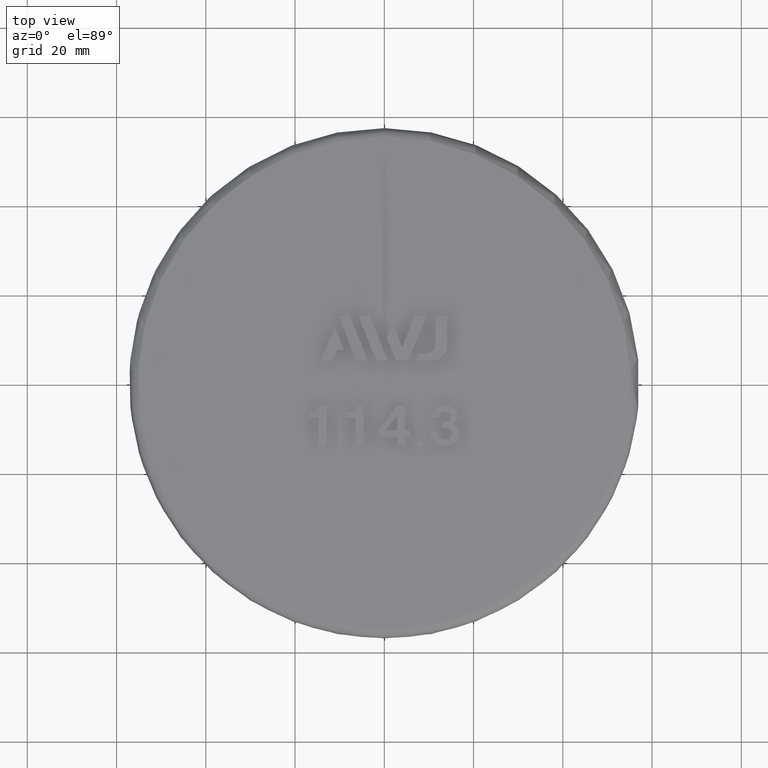
[diagram: clean part render]
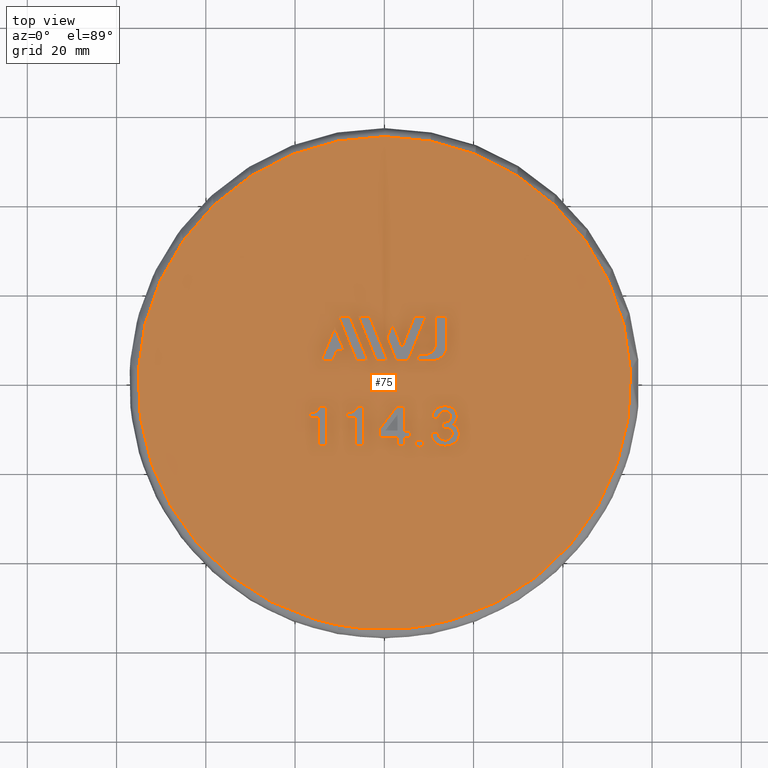
[diagram: same view with one face highlighted and labeled with its STEP entity id]
A machine part, top view. The second image highlights one B-rep face of the part: STEP entity #75.
In plain terms, the highlighted face is a freeform B-spline surface patch.
Its self-contained STEP definition (entity closure, byte-faithful):
#75 = ADVANCED_FACE( '', ( #177, #178, #179, #180, #181, #182, #183, #184, #185, #186, #187, #188 ), #189, .T. );
#177 = FACE_BOUND( '', #415, .T. );
#178 = FACE_BOUND( '', #416, .T. );
#179 = FACE_BOUND( '', #417, .T. );
#180 = FACE_BOUND( '', #418, .T. );
#181 = FACE_BOUND( '', #419, .T. );
#182 = FACE_BOUND( '', #420, .T. );
#183 = FACE_BOUND( '', #421, .T. );
#184 = FACE_BOUND( '', #422, .T. );
#185 = FACE_OUTER_BOUND( '', #423, .T. );
#186 = FACE_BOUND( '', #424, .T. );
#187 = FACE_BOUND( '', #425, .T. );
#188 = FACE_BOUND( '', #426, .T. );
#189 = ( B_SPLINE_SURFACE( 3, 3, ( ( #428, #429, #430, #431, #432, #433, #434 ), ( #435, #436, #437, #438, #439, #440, #441 ), ( #442, #443, #444, #445, #446, #447, #448 ), ( #449, #450, #451, #452, #453, #454, #455 ) ), .UNSPECIFIED., .F., .T., .F. )B_SPLINE_SURFACE_WITH_KNOTS( ( 4, 4 ), ( 4, 3, 4 ), ( 0.000000000000000, 6.28318530717959 ), ( -1.57235436849402, -1.55394387726854, -1.53553338604306 ), .UNSPECIFIED. )RATIONAL_B_SPLINE_SURFACE( ( ( 1.00000000000000, 0.333333333333333, 0.333333333333333, 1.00000000000000, 0.333333333333333, 0.333333333333333, 1.00000000000000 ), ( 0.999887021128813, 0.333295673709604, 0.333295673709604, 0.999887021128813, 0.333295673709604, 0.333295673709604, 0.999887021128813 ), ( 0.999887021128813, 0.333295673709604, 0.333295673709604, 0.999887021128813, 0.333295673709604, 0.333295673709604, 0.999887021128813 ), ( 1.00000000000000, 0.333333333333333, 0.333333333333333, 1.00000000000000, 0.333333333333333, 0.333333333333333, 1.00000000000000 ) ) )BOUNDED_SURFACE(  )REPRESENTATION_ITEM( '' )GEOMETRIC_REPRESENTATION_ITEM(  )SURFACE(  ) );
#415 = EDGE_LOOP( '', ( #937, #938, #939, #940, #941, #942, #943, #944 ) );
#416 = EDGE_LOOP( '', ( #945 ) );
#417 = EDGE_LOOP( '', ( #946, #947, #948, #949, #950, #951, #952, #953, #954, #955, #956 ) );
#418 = EDGE_LOOP( '', ( #957, #958, #959, #960, #961, #962, #963 ) );
#419 = EDGE_LOOP( '', ( #964, #965, #966, #967, #968, #969, #970 ) );
#420 = EDGE_LOOP( '', ( #971, #972, #973, #974 ) );
#421 = EDGE_LOOP( '', ( #975, #976, #977, #978, #979, #980, #981 ) );
#422 = VERTEX_LOOP( '', #982 );
#423 = EDGE_LOOP( '', ( #983 ) );
#424 = EDGE_LOOP( '', ( #984, #985, #986, #987, #988, #989, #990, #991 ) );
#425 = EDGE_LOOP( '', ( #992, #993, #994, #995 ) );
#426 = EDGE_LOOP( '', ( #996, #997, #998, #999, #1000 ) );
#428 = CARTESIAN_POINT( '', ( 0.000000000000000, 55.2205112662175, 27.0693110126059 ) );
#429 = CARTESIAN_POINT( '', ( 110.441022532435, 55.2205112662175, 27.0693110126059 ) );
#430 = CARTESIAN_POINT( '', ( 110.441022532435, -55.2205112662175, 27.0693110126059 ) );
#431 = CARTESIAN_POINT( '', ( 0.000000000000000, -55.2205112662175, 27.0693110126059 ) );
#432 = CARTESIAN_POINT( '', ( -110.441022532435, -55.2205112662175, 27.0693110126059 ) );
#433 = CARTESIAN_POINT( '', ( -110.441022532435, 55.2205112662175, 27.0693110126059 ) );
#434 = CARTESIAN_POINT( '', ( 0.000000000000000, 55.2205112662175, 27.0693110126059 ) );
#435 = CARTESIAN_POINT( '', ( 0.000000000000000, 36.8204258899541, 27.7184212061282 ) );
#436 = CARTESIAN_POINT( '', ( 73.6408517799082, 36.8204258899541, 27.7184212061282 ) );
#437 = CARTESIAN_POINT( '', ( 73.6408517799082, -36.8204258899541, 27.7184212061283 ) );
#438 = CARTESIAN_POINT( '', ( 0.000000000000000, -36.8204258899541, 27.7184212061283 ) );
#439 = CARTESIAN_POINT( '', ( -73.6408517799082, -36.8204258899541, 27.7184212061283 ) );
#440 = CARTESIAN_POINT( '', ( -73.6408517799082, 36.8204258899541, 27.7184212061282 ) );
#441 = CARTESIAN_POINT( '', ( 0.000000000000000, 36.8204258899541, 27.7184212061282 ) );
#442 = CARTESIAN_POINT( '', ( 0.000000000000000, 18.4115089825626, 28.0286859219505 ) );
#443 = CARTESIAN_POINT( '', ( 36.8230179651251, 18.4115089825626, 28.0286859219505 ) );
#444 = CARTESIAN_POINT( '', ( 36.8230179651251, -18.4115089825626, 28.0286859219505 ) );
#445 = CARTESIAN_POINT( '', ( 0.000000000000000, -18.4115089825626, 28.0286859219505 ) );
#446 = CARTESIAN_POINT( '', ( -36.8230179651251, -18.4115089825626, 28.0286859219505 ) );
#447 = CARTESIAN_POINT( '', ( -36.8230179651251, 18.4115089825626, 28.0286859219505 ) );
#448 = CARTESIAN_POINT( '', ( 0.000000000000000, 18.4115089825626, 28.0286859219505 ) );
#449 = CARTESIAN_POINT( '', ( 0.000000000000000, -4.85288892404512E-013, 28.0000000000002 ) );
#450 = CARTESIAN_POINT( '', ( -9.71312548621317E-013, -4.85288892404512E-013, 28.0000000000002 ) );
#451 = CARTESIAN_POINT( '', ( -9.71312548621317E-013, 4.86023656216805E-013, 28.0000000000002 ) );
#452 = CARTESIAN_POINT( '', ( 0.000000000000000, 4.86023656216805E-013, 28.0000000000002 ) );
#453 = CARTESIAN_POINT( '', ( 9.71312548621317E-013, 4.86023656216805E-013, 28.0000000000002 ) );
#454 = CARTESIAN_POINT( '', ( 9.71312548621317E-013, -4.85288892404512E-013, 28.0000000000002 ) );
#455 = CARTESIAN_POINT( '', ( 0.000000000000000, -4.85288892404512E-013, 28.0000000000002 ) );
#937 = ORIENTED_EDGE( '', *, *, #1697, .T. );
#938 = ORIENTED_EDGE( '', *, *, #1698, .T. );
#939 = ORIENTED_EDGE( '', *, *, #1699, .T. );
#940 = ORIENTED_EDGE( '', *, *, #1700, .T. );
#941 = ORIENTED_EDGE( '', *, *, #1701, .T. );
#942 = ORIENTED_EDGE( '', *, *, #1702, .T. );
#943 = ORIENTED_EDGE( '', *, *, #1703, .T. );
#944 = ORIENTED_EDGE( '', *, *, #1704, .T. );
#945 = ORIENTED_EDGE( '', *, *, #1705, .T. );
#946 = ORIENTED_EDGE( '', *, *, #1706, .T. );
#947 = ORIENTED_EDGE( '', *, *, #1707, .T. );
#948 = ORIENTED_EDGE( '', *, *, #1708, .T. );
#949 = ORIENTED_EDGE( '', *, *, #1709, .T. );
#950 = ORIENTED_EDGE( '', *, *, #1710, .T. );
#951 = ORIENTED_EDGE( '', *, *, #1711, .T. );
#952 = ORIENTED_EDGE( '', *, *, #1712, .T. );
#953 = ORIENTED_EDGE( '', *, *, #1713, .T. );
#954 = ORIENTED_EDGE( '', *, *, #1714, .T. );
#955 = ORIENTED_EDGE( '', *, *, #1715, .T. );
#956 = ORIENTED_EDGE( '', *, *, #1716, .T. );
#957 = ORIENTED_EDGE( '', *, *, #1717, .T. );
#958 = ORIENTED_EDGE( '', *, *, #1718, .T. );
#959 = ORIENTED_EDGE( '', *, *, #1719, .T. );
#960 = ORIENTED_EDGE( '', *, *, #1720, .T. );
#961 = ORIENTED_EDGE( '', *, *, #1721, .T. );
#962 = ORIENTED_EDGE( '', *, *, #1722, .T. );
#963 = ORIENTED_EDGE( '', *, *, #1723, .T. );
#964 = ORIENTED_EDGE( '', *, *, #1724, .T. );
#965 = ORIENTED_EDGE( '', *, *, #1725, .T. );
#966 = ORIENTED_EDGE( '', *, *, #1726, .T. );
#967 = ORIENTED_EDGE( '', *, *, #1727, .T. );
#968 = ORIENTED_EDGE( '', *, *, #1728, .T. );
#969 = ORIENTED_EDGE( '', *, *, #1729, .T. );
#970 = ORIENTED_EDGE( '', *, *, #1730, .T. );
#971 = ORIENTED_EDGE( '', *, *, #1731, .F. );
#972 = ORIENTED_EDGE( '', *, *, #1732, .F. );
#973 = ORIENTED_EDGE( '', *, *, #1733, .F. );
#974 = ORIENTED_EDGE( '', *, *, #1734, .F. );
#975 = ORIENTED_EDGE( '', *, *, #1735, .F. );
#976 = ORIENTED_EDGE( '', *, *, #1736, .F. );
#977 = ORIENTED_EDGE( '', *, *, #1737, .F. );
#978 = ORIENTED_EDGE( '', *, *, #1738, .F. );
#979 = ORIENTED_EDGE( '', *, *, #1739, .F. );
#980 = ORIENTED_EDGE( '', *, *, #1740, .F. );
#981 = ORIENTED_EDGE( '', *, *, #1741, .F. );
#982 = VERTEX_POINT( '', #1742 );
#983 = ORIENTED_EDGE( '', *, *, #1743, .F. );
#984 = ORIENTED_EDGE( '', *, *, #1744, .F. );
#985 = ORIENTED_EDGE( '', *, *, #1745, .F. );
#986 = ORIENTED_EDGE( '', *, *, #1746, .F. );
#987 = ORIENTED_EDGE( '', *, *, #1747, .F. );
#988 = ORIENTED_EDGE( '', *, *, #1748, .F. );
#989 = ORIENTED_EDGE( '', *, *, #1749, .F. );
#990 = ORIENTED_EDGE( '', *, *, #1750, .F. );
#991 = ORIENTED_EDGE( '', *, *, #1751, .F. );
#992 = ORIENTED_EDGE( '', *, *, #1752, .F. );
#993 = ORIENTED_EDGE( '', *, *, #1753, .F. );
#994 = ORIENTED_EDGE( '', *, *, #1754, .F. );
#995 = ORIENTED_EDGE( '', *, *, #1755, .F. );
#996 = ORIENTED_EDGE( '', *, *, #1756, .F. );
#997 = ORIENTED_EDGE( '', *, *, #1757, .F. );
#998 = ORIENTED_EDGE( '', *, *, #1758, .F. );
#999 = ORIENTED_EDGE( '', *, *, #1759, .F. );
#1000 = ORIENTED_EDGE( '', *, *, #1760, .F. );
#1697 = EDGE_CURVE( '', #1916, #1917, #1918, .T. );
#1698 = EDGE_CURVE( '', #1917, #1919, #1920, .T. );
#1699 = EDGE_CURVE( '', #1919, #1921, #1922, .T. );
#1700 = EDGE_CURVE( '', #1921, #1923, #1924, .T. );
#1701 = EDGE_CURVE( '', #1923, #1925, #1926, .T. );
#1702 = EDGE_CURVE( '', #1925, #1927, #1928, .T. );
#1703 = EDGE_CURVE( '', #1927, #1929, #1930, .T. );
#1704 = EDGE_CURVE( '', #1929, #1916, #1931, .T. );
#1705 = EDGE_CURVE( '', #1932, #1932, #1933, .T. );
#1706 = EDGE_CURVE( '', #1934, #1935, #1936, .T. );
#1707 = EDGE_CURVE( '', #1935, #1937, #1938, .T. );
#1708 = EDGE_CURVE( '', #1937, #1939, #1940, .T. );
#1709 = EDGE_CURVE( '', #1939, #1941, #1942, .T. );
#1710 = EDGE_CURVE( '', #1941, #1943, #1944, .T. );
#1711 = EDGE_CURVE( '', #1943, #1945, #1946, .T. );
#1712 = EDGE_CURVE( '', #1945, #1947, #1948, .T. );
#1713 = EDGE_CURVE( '', #1947, #1949, #1950, .T. );
#1714 = EDGE_CURVE( '', #1949, #1951, #1952, .T. );
#1715 = EDGE_CURVE( '', #1951, #1953, #1954, .T. );
#1716 = EDGE_CURVE( '', #1953, #1934, #1955, .T. );
#1717 = EDGE_CURVE( '', #1956, #1957, #1958, .T. );
#1718 = EDGE_CURVE( '', #1957, #1959, #1960, .T. );
#1719 = EDGE_CURVE( '', #1959, #1961, #1962, .T. );
#1720 = EDGE_CURVE( '', #1961, #1963, #1964, .T. );
#1721 = EDGE_CURVE( '', #1963, #1965, #1966, .T. );
#1722 = EDGE_CURVE( '', #1965, #1967, #1968, .T. );
#1723 = EDGE_CURVE( '', #1967, #1956, #1969, .T. );
#1724 = EDGE_CURVE( '', #1970, #1971, #1972, .T. );
#1725 = EDGE_CURVE( '', #1971, #1973, #1974, .T. );
#1726 = EDGE_CURVE( '', #1973, #1975, #1976, .T. );
#1727 = EDGE_CURVE( '', #1975, #1977, #1978, .T. );
#1728 = EDGE_CURVE( '', #1977, #1979, #1980, .T. );
#1729 = EDGE_CURVE( '', #1979, #1981, #1982, .T. );
#1730 = EDGE_CURVE( '', #1981, #1970, #1983, .T. );
#1731 = EDGE_CURVE( '', #1984, #1985, #1986, .T. );
#1732 = EDGE_CURVE( '', #1987, #1984, #1988, .T. );
#1733 = EDGE_CURVE( '', #1989, #1987, #1990, .T. );
#1734 = EDGE_CURVE( '', #1985, #1989, #1991, .T. );
#1735 = EDGE_CURVE( '', #1992, #1993, #1994, .T. );
#1736 = EDGE_CURVE( '', #1995, #1992, #1996, .T. );
#1737 = EDGE_CURVE( '', #1997, #1995, #1998, .T. );
#1738 = EDGE_CURVE( '', #1999, #1997, #2000, .T. );
#1739 = EDGE_CURVE( '', #2001, #1999, #2002, .T. );
#1740 = EDGE_CURVE( '', #2003, #2001, #2004, .T. );
#1741 = EDGE_CURVE( '', #1993, #2003, #2005, .T. );
#1742 = CARTESIAN_POINT( '', ( 4.33680868994202E-016, 3.67381906146753E-016, 28.0000000000002 ) );
#1743 = EDGE_CURVE( '', #2006, #2006, #2007, .T. );
#1744 = EDGE_CURVE( '', #2008, #2009, #2010, .T. );
#1745 = EDGE_CURVE( '', #2011, #2008, #2012, .T. );
#1746 = EDGE_CURVE( '', #2013, #2011, #2014, .T. );
#1747 = EDGE_CURVE( '', #2015, #2013, #2016, .T. );
#1748 = EDGE_CURVE( '', #2017, #2015, #2018, .T. );
#1749 = EDGE_CURVE( '', #2019, #2017, #2020, .T. );
#1750 = EDGE_CURVE( '', #2021, #2019, #2022, .T. );
#1751 = EDGE_CURVE( '', #2009, #2021, #2023, .T. );
#1752 = EDGE_CURVE( '', #2024, #2025, #2026, .T. );
#1753 = EDGE_CURVE( '', #2027, #2024, #2028, .T. );
#1754 = EDGE_CURVE( '', #2029, #2027, #2030, .T. );
#1755 = EDGE_CURVE( '', #2025, #2029, #2031, .T. );
#1756 = EDGE_CURVE( '', #2032, #2033, #2034, .T. );
#1757 = EDGE_CURVE( '', #2035, #2032, #2036, .T. );
#1758 = EDGE_CURVE( '', #2037, #2035, #2038, .T. );
#1759 = EDGE_CURVE( '', #2039, #2037, #2040, .T. );
#1760 = EDGE_CURVE( '', #2033, #2039, #2041, .T. );
#1916 = VERTEX_POINT( '', #2288 );
#1917 = VERTEX_POINT( '', #2289 );
#1918 = B_SPLINE_CURVE_WITH_KNOTS( '', 3, ( #2290, #2291, #2292, #2293, #2294, #2295 ), .UNSPECIFIED., .F., .F., ( 4, 2, 4 ), ( 9.51669816724376, 9.51739772819665, 9.51809728914955 ), .UNSPECIFIED. );
#1919 = VERTEX_POINT( '', #2296 );
#1920 = B_SPLINE_CURVE_WITH_KNOTS( '', 3, ( #2297, #2298, #2299, #2300, #2301, #2302, #2303, #2304, #2305, #2306, #2307, #2308, #2309, #2310, #2311, #2312, #2313, #2314, #2315, #2316, #2317, #2318, #2319, #2320, #2321, #2322, #2323, #2324, #2325, #2326, #2327, #2328, #2329, #2330, #2331, #2332 ), .UNSPECIFIED., .F., .F., ( 4, 2, 2, 2, 2, 2, 2, 2, 2, 2, 2, 2, 2, 2, 2, 2, 2, 4 ), ( 0.000000000000000, 0.000674821389498932, 0.00134964277899786, 0.00202446416849680, 0.00269928555799573, 0.00337410694749466, 0.00404892833699359, 0.00472374972649252, 0.00539857111599145, 0.00607339250549039, 0.00674821389498932, 0.00742303528448826, 0.00809785667398719, 0.00877267806348614, 0.00911008875823560, 0.00944749945298507, 0.0101223208424840, 0.0107971422319829 ), .UNSPECIFIED. );
#1921 = VERTEX_POINT( '', #2333 );
#1922 = B_SPLINE_CURVE_WITH_KNOTS( '', 3, ( #2334, #2335, #2336, #2337, #2338, #2339, #2340, #2341, #2342, #2343, #2344, #2345, #2346, #2347, #2348, #2349, #2350, #2351, #2352, #2353, #2354, #2355, #2356, #2357, #2358, #2359, #2360, #2361, #2362, #2363, #2364, #2365 ), .UNSPECIFIED., .F., .F., ( 4, 2, 2, 2, 2, 2, 2, 2, 2, 2, 2, 2, 2, 2, 2, 4 ), ( 0.000000000000000, 0.000613856985638581, 0.00122771397127716, 0.00153464246409645, 0.00184157095691575, 0.00245542794255434, 0.00306928492819292, 0.00368314191383151, 0.00491085588510869, 0.00552471287074727, 0.00613856985638586, 0.00675242684202444, 0.00736628382766303, 0.00859399779894020, 0.00920785478457878, 0.00982171177021737 ), .UNSPECIFIED. );
#1923 = VERTEX_POINT( '', #2366 );
#1924 = B_SPLINE_CURVE_WITH_KNOTS( '', 3, ( #2367, #2368, #2369, #2370, #2371, #2372, #2373, #2374, #2375, #2376 ), .UNSPECIFIED., .F., .F., ( 4, 2, 2, 2, 4 ), ( 0.000000000000000, 0.000688424287591762, 0.00137684857518352, 0.00206527286277529, 0.00275369715036705 ), .UNSPECIFIED. );
#1925 = VERTEX_POINT( '', #2377 );
#1926 = B_SPLINE_CURVE_WITH_KNOTS( '', 3, ( #2378, #2379, #2380, #2381, #2382, #2383 ), .UNSPECIFIED., .F., .F., ( 4, 2, 4 ), ( 9.51724989867410, 9.51802716645462, 9.51880443423515 ), .UNSPECIFIED. );
#1927 = VERTEX_POINT( '', #2384 );
#1928 = B_SPLINE_CURVE_WITH_KNOTS( '', 3, ( #2385, #2386, #2387, #2388, #2389, #2390, #2391, #2392, #2393, #2394, #2395, #2396, #2397, #2398, #2399, #2400, #2401, #2402, #2403, #2404, #2405, #2406, #2407, #2408, #2409, #2410, #2411, #2412, #2413, #2414, #2415, #2416, #2417, #2418, #2419, #2420, #2421, #2422, #2423, #2424 ), .UNSPECIFIED., .F., .F., ( 4, 2, 2, 2, 2, 2, 2, 2, 2, 2, 2, 2, 2, 2, 2, 2, 2, 2, 2, 4 ), ( 0.000000000000000, 0.000485256102238799, 0.000970512204477598, 0.00145576830671640, 0.00194102440895520, 0.00242628051119399, 0.00291153661343279, 0.00339679271567159, 0.00388204881791039, 0.00436730492014919, 0.00460993297126859, 0.00485256102238799, 0.00533781712462679, 0.00558044517574619, 0.00582307322686559, 0.00606570127798499, 0.00630832932910439, 0.00655095738022379, 0.00679358543134319, 0.00776409763582080 ), .UNSPECIFIED. );
#1929 = VERTEX_POINT( '', #2425 );
#1930 = B_SPLINE_CURVE_WITH_KNOTS( '', 3, ( #2426, #2427, #2428, #2429, #2430, #2431 ), .UNSPECIFIED., .F., .F., ( 4, 2, 4 ), ( 9.51737793668783, 9.51804723536890, 9.51871653404997 ), .UNSPECIFIED. );
#1931 = B_SPLINE_CURVE_WITH_KNOTS( '', 3, ( #2432, #2433, #2434, #2435, #2436, #2437, #2438, #2439, #2440, #2441, #2442, #2443, #2444, #2445, #2446, #2447, #2448, #2449, #2450, #2451, #2452, #2453, #2454, #2455, #2456, #2457, #2458, #2459, #2460, #2461, #2462, #2463, #2464, #2465, #2466, #2467 ), .UNSPECIFIED., .F., .F., ( 4, 2, 2, 2, 2, 2, 2, 2, 2, 2, 2, 2, 2, 2, 2, 2, 2, 4 ), ( 0.000000000000000, 0.000856470489520276, 0.00128470573428042, 0.00149882335666048, 0.00171294097904055, 0.00192705860142062, 0.00214117622380068, 0.00235529384618075, 0.00256941146856082, 0.00299764671332095, 0.00342588195808108, 0.00385411720284121, 0.00428235244760135, 0.00471058769236148, 0.00513882293712161, 0.00556705818188174, 0.00599529342664187, 0.00685176391616213 ), .UNSPECIFIED. );
#1932 = VERTEX_POINT( '', #2468 );
#1933 = B_SPLINE_CURVE_WITH_KNOTS( '', 3, ( #2469, #2470, #2471, #2472, #2473, #2474, #2475, #2476, #2477, #2478, #2479, #2480, #2481, #2482, #2483, #2484, #2485, #2486, #2487, #2488, #2489, #2490, #2491, #2492, #2493, #2494, #2495, #2496, #2497, #2498, #2499, #2500, #2501, #2502 ), .UNSPECIFIED., .T., .F., ( 2, 2, 2, 2, 2, 2, 2, 2, 2, 2, 2, 2, 2, 2, 2, 2, 2, 2, 2 ), ( -0.000332484029414087, 0.000000000000000, 0.000332484029414087, 0.000664968058828173, 0.000997452088242260, 0.00132993611765635, 0.00166242014707043, 0.00199490417648452, 0.00232738820589861, 0.00265987223531269, 0.00299235626472678, 0.00332484029414087, 0.00365732432355495, 0.00398980835296904, 0.00432229238238313, 0.00465477641179721, 0.00498726044121130, 0.00531974447062538, 0.00565222850003947 ), .UNSPECIFIED. );
#1934 = VERTEX_POINT( '', #2503 );
#1935 = VERTEX_POINT( '', #2504 );
#1936 = B_SPLINE_CURVE_WITH_KNOTS( '', 3, ( #2505, #2506, #2507, #2508, #2509, #2510 ), .UNSPECIFIED., .F., .F., ( 4, 2, 4 ), ( 9.51722120429755, 9.51805028741190, 9.51887937052626 ), .UNSPECIFIED. );
#1937 = VERTEX_POINT( '', #2511 );
#1938 = B_SPLINE_CURVE_WITH_KNOTS( '', 3, ( #2512, #2513, #2514, #2515, #2516, #2517 ), .UNSPECIFIED., .F., .F., ( 4, 2, 4 ), ( 9.51776508256005, 9.51873669119526, 9.51970829983048 ), .UNSPECIFIED. );
#1939 = VERTEX_POINT( '', #2518 );
#1940 = B_SPLINE_CURVE_WITH_KNOTS( '', 3, ( #2519, #2520, #2521, #2522, #2523, #2524 ), .UNSPECIFIED., .F., .F., ( 4, 2, 4 ), ( 9.51721485841612, 9.51920988327085, 9.52120490812558 ), .UNSPECIFIED. );
#1941 = VERTEX_POINT( '', #2525 );
#1942 = B_SPLINE_CURVE_WITH_KNOTS( '', 3, ( #2526, #2527, #2528, #2529, #2530, #2531 ), .UNSPECIFIED., .F., .F., ( 4, 2, 4 ), ( 9.51783188200093, 9.51876030407075, 9.51968872614056 ), .UNSPECIFIED. );
#1943 = VERTEX_POINT( '', #2532 );
#1944 = B_SPLINE_CURVE_WITH_KNOTS( '', 3, ( #2533, #2534, #2535, #2536 ), .UNSPECIFIED., .F., .F., ( 4, 4 ), ( 2.51535806583876E-007, 0.00640866566806036 ), .UNSPECIFIED. );
#1945 = VERTEX_POINT( '', #2537 );
#1946 = B_SPLINE_CURVE_WITH_KNOTS( '', 3, ( #2538, #2539, #2540, #2541, #2542, #2543 ), .UNSPECIFIED., .F., .F., ( 4, 2, 4 ), ( 9.51626876500268, 9.51714963955333, 9.51803051410397 ), .UNSPECIFIED. );
#1947 = VERTEX_POINT( '', #2544 );
#1948 = B_SPLINE_CURVE_WITH_KNOTS( '', 3, ( #2545, #2546, #2547, #2548, #2549, #2550 ), .UNSPECIFIED., .F., .F., ( 4, 2, 4 ), ( 9.51703750428399, 9.51982288179961, 9.52260825931522 ), .UNSPECIFIED. );
#1949 = VERTEX_POINT( '', #2551 );
#1950 = B_SPLINE_CURVE_WITH_KNOTS( '', 3, ( #2552, #2553, #2554, #2555, #2556, #2557 ), .UNSPECIFIED., .F., .F., ( 4, 2, 4 ), ( 9.51866076076799, 9.51925667333042, 9.51985258589285 ), .UNSPECIFIED. );
#1951 = VERTEX_POINT( '', #2558 );
#1952 = B_SPLINE_CURVE_WITH_KNOTS( '', 3, ( #2559, #2560, #2561, #2562, #2563, #2564 ), .UNSPECIFIED., .F., .F., ( 4, 2, 4 ), ( 9.51756065039003, 9.51825159840922, 9.51894254642841 ), .UNSPECIFIED. );
#1953 = VERTEX_POINT( '', #2565 );
#1954 = B_SPLINE_CURVE_WITH_KNOTS( '', 3, ( #2566, #2567, #2568, #2569, #2570, #2571 ), .UNSPECIFIED., .F., .F., ( 4, 2, 4 ), ( 9.51745024785559, 9.51804617151482, 9.51864209517406 ), .UNSPECIFIED. );
#1955 = B_SPLINE_CURVE_WITH_KNOTS( '', 3, ( #2572, #2573, #2574, #2575, #2576, #2577 ), .UNSPECIFIED., .F., .F., ( 4, 2, 4 ), ( 9.51576868883566, 9.51674035528529, 9.51771202173493 ), .UNSPECIFIED. );
#1956 = VERTEX_POINT( '', #2578 );
#1957 = VERTEX_POINT( '', #2579 );
#1958 = B_SPLINE_CURVE_WITH_KNOTS( '', 3, ( #2580, #2581, #2582, #2583, #2584, #2585 ), .UNSPECIFIED., .F., .F., ( 4, 2, 4 ), ( 9.51702460834062, 9.51790550524479, 9.51878640214895 ), .UNSPECIFIED. );
#1959 = VERTEX_POINT( '', #2586 );
#1960 = B_SPLINE_CURVE_WITH_KNOTS( '', 3, ( #2587, #2588, #2589, #2590, #2591, #2592 ), .UNSPECIFIED., .F., .F., ( 4, 2, 4 ), ( 9.51620185630433, 9.51935415987908, 9.52250646345384 ), .UNSPECIFIED. );
#1961 = VERTEX_POINT( '', #2593 );
#1962 = B_SPLINE_CURVE_WITH_KNOTS( '', 3, ( #2594, #2595, #2596, #2597, #2598, #2599 ), .UNSPECIFIED., .F., .F., ( 4, 2, 4 ), ( 9.51746129458218, 9.51847180740899, 9.51948232023581 ), .UNSPECIFIED. );
#1963 = VERTEX_POINT( '', #2600 );
#1964 = B_SPLINE_CURVE_WITH_KNOTS( '', 3, ( #2601, #2602, #2603, #2604, #2605, #2606 ), .UNSPECIFIED., .F., .F., ( 4, 2, 4 ), ( 9.51809505381736, 9.51863483849434, 9.51917462317131 ), .UNSPECIFIED. );
#1965 = VERTEX_POINT( '', #2607 );
#1966 = B_SPLINE_CURVE_WITH_KNOTS( '', 3, ( #2608, #2609, #2610, #2611, #2612, #2613, #2614, #2615, #2616, #2617, #2618, #2619, #2620, #2621, #2622, #2623 ), .UNSPECIFIED., .F., .F., ( 4, 2, 2, 2, 2, 2, 2, 4 ), ( 0.000000000000000, 0.000761180923659336, 0.00114177138548900, 0.00152236184731867, 0.00190295230914834, 0.00228354277097801, 0.00266413323280768, 0.00304472369463734 ), .UNSPECIFIED. );
#1967 = VERTEX_POINT( '', #2624 );
#1968 = B_SPLINE_CURVE_WITH_KNOTS( '', 3, ( #2625, #2626, #2627, #2628, #2629, #2630 ), .UNSPECIFIED., .F., .F., ( 4, 2, 4 ), ( 9.52274079618128, 9.52346625738976, 9.52419171859825 ), .UNSPECIFIED. );
#1969 = B_SPLINE_CURVE_WITH_KNOTS( '', 3, ( #2631, #2632, #2633, #2634, #2635, #2636 ), .UNSPECIFIED., .F., .F., ( 4, 2, 4 ), ( 9.51407283886714, 9.51852086718434, 9.52296889550153 ), .UNSPECIFIED. );
#1970 = VERTEX_POINT( '', #2637 );
#1971 = VERTEX_POINT( '', #2638 );
#1972 = B_SPLINE_CURVE_WITH_KNOTS( '', 3, ( #2639, #2640, #2641, #2642, #2643, #2644 ), .UNSPECIFIED., .F., .F., ( 4, 2, 4 ), ( 9.51583232902818, 9.51671322978440, 9.51759413054062 ), .UNSPECIFIED. );
#1973 = VERTEX_POINT( '', #2645 );
#1974 = B_SPLINE_CURVE_WITH_KNOTS( '', 3, ( #2646, #2647, #2648, #2649, #2650, #2651 ), .UNSPECIFIED., .F., .F., ( 4, 2, 4 ), ( 9.51443917127268, 9.51759137843793, 9.52074358560318 ), .UNSPECIFIED. );
#1975 = VERTEX_POINT( '', #2652 );
#1976 = B_SPLINE_CURVE_WITH_KNOTS( '', 3, ( #2653, #2654, #2655, #2656, #2657, #2658 ), .UNSPECIFIED., .F., .F., ( 4, 2, 4 ), ( 9.51680154139878, 9.51781199656382, 9.51882245172887 ), .UNSPECIFIED. );
#1977 = VERTEX_POINT( '', #2659 );
#1978 = B_SPLINE_CURVE_WITH_KNOTS( '', 3, ( #2660, #2661, #2662, #2663, #2664, #2665 ), .UNSPECIFIED., .F., .F., ( 4, 2, 4 ), ( 9.51691312465450, 9.51745287236188, 9.51799262006926 ), .UNSPECIFIED. );
#1979 = VERTEX_POINT( '', #2666 );
#1980 = B_SPLINE_CURVE_WITH_KNOTS( '', 3, ( #2667, #2668, #2669, #2670, #2671, #2672, #2673, #2674, #2675, #2676, #2677, #2678, #2679, #2680, #2681, #2682 ), .UNSPECIFIED., .F., .F., ( 4, 2, 2, 2, 2, 2, 2, 4 ), ( 0.000000000000000, 0.000761202286179395, 0.00114180342926910, 0.00152240457235881, 0.00190300571544851, 0.00228360685853822, 0.00266420800162793, 0.00304480914471764 ), .UNSPECIFIED. );
#1981 = VERTEX_POINT( '', #2683 );
#1982 = B_SPLINE_CURVE_WITH_KNOTS( '', 3, ( #2684, #2685, #2686, #2687, #2688, #2689 ), .UNSPECIFIED., .F., .F., ( 4, 2, 4 ), ( 9.51691971238281, 9.51764518297013, 9.51837065355745 ), .UNSPECIFIED. );
#1983 = B_SPLINE_CURVE_WITH_KNOTS( '', 3, ( #2690, #2691, #2692, #2693, #2694, #2695 ), .UNSPECIFIED., .F., .F., ( 4, 2, 4 ), ( 9.51339960598523, 9.51784728502201, 9.52229496405880 ), .UNSPECIFIED. );
#1984 = VERTEX_POINT( '', #2696 );
#1985 = VERTEX_POINT( '', #2697 );
#1986 = B_SPLINE_CURVE_WITH_KNOTS( '', 3, ( #2698, #2699, #2700, #2701 ), .UNSPECIFIED., .F., .F., ( 4, 4 ), ( 2.15710412760301E-007, 0.0107888019910525 ), .UNSPECIFIED. );
#1987 = VERTEX_POINT( '', #2702 );
#1988 = B_SPLINE_CURVE_WITH_KNOTS( '', 3, ( #2703, #2704, #2705, #2706, #2707, #2708 ), .UNSPECIFIED., .F., .F., ( 4, 2, 4 ), ( 9.51513272405904, 9.51642493031094, 9.51771713656284 ), .UNSPECIFIED. );
#1989 = VERTEX_POINT( '', #2709 );
#1990 = B_SPLINE_CURVE_WITH_KNOTS( '', 3, ( #2710, #2711, #2712, #2713 ), .UNSPECIFIED., .F., .F., ( 4, 4 ), ( 2.15716075332965E-007, 0.0107886260747111 ), .UNSPECIFIED. );
#1991 = B_SPLINE_CURVE_WITH_KNOTS( '', 3, ( #2714, #2715, #2716, #2717, #2718, #2719 ), .UNSPECIFIED., .F., .F., ( 4, 2, 4 ), ( 9.51625087663157, 9.51754284310922, 9.51883480958687 ), .UNSPECIFIED. );
#1992 = VERTEX_POINT( '', #2720 );
#1993 = VERTEX_POINT( '', #2721 );
#1994 = B_SPLINE_CURVE_WITH_KNOTS( '', 3, ( #2722, #2723, #2724, #2725, #2726, #2727 ), .UNSPECIFIED., .F., .F., ( 4, 2, 4 ), ( 9.51645694977088, 9.51774930353831, 9.51904165730573 ), .UNSPECIFIED. );
#1995 = VERTEX_POINT( '', #2728 );
#1996 = B_SPLINE_CURVE_WITH_KNOTS( '', 3, ( #2729, #2730, #2731, #2732 ), .UNSPECIFIED., .F., .F., ( 4, 4 ), ( 2.15705806187730E-007, 0.0107885896694640 ), .UNSPECIFIED. );
#1997 = VERTEX_POINT( '', #2733 );
#1998 = B_SPLINE_CURVE_WITH_KNOTS( '', 3, ( #2734, #2735, #2736, #2737, #2738, #2739 ), .UNSPECIFIED., .F., .F., ( 4, 2, 4 ), ( 9.51406036462168, 9.51542655137210, 9.51679273812253 ), .UNSPECIFIED. );
#1999 = VERTEX_POINT( '', #2740 );
#2000 = B_SPLINE_CURVE_WITH_KNOTS( '', 3, ( #2741, #2742, #2743, #2744 ), .UNSPECIFIED., .F., .F., ( 4, 4 ), ( 2.15714294477720E-007, 0.00549666687092706 ), .UNSPECIFIED. );
#2001 = VERTEX_POINT( '', #2745 );
#2002 = B_SPLINE_CURVE_WITH_KNOTS( '', 3, ( #2746, #2747, #2748, #2749 ), .UNSPECIFIED., .F., .F., ( 4, 4 ), ( 2.15707050940421E-007, 0.00345080121148526 ), .UNSPECIFIED. );
#2003 = VERTEX_POINT( '', #2750 );
#2004 = B_SPLINE_CURVE_WITH_KNOTS( '', 3, ( #2751, #2752, #2753, #2754 ), .UNSPECIFIED., .F., .F., ( 4, 4 ), ( 2.15708953978116E-007, 0.00569351336475093 ), .UNSPECIFIED. );
#2005 = B_SPLINE_CURVE_WITH_KNOTS( '', 3, ( #2755, #2756, #2757, #2758 ), .UNSPECIFIED., .F., .F., ( 4, 4 ), ( 2.15719381442377E-007, 0.00753503304900350 ), .UNSPECIFIED. );
#2006 = VERTEX_POINT( '', #2759 );
#2007 = CIRCLE( '', #2760, 55.2205112662174 );
#2008 = VERTEX_POINT( '', #2761 );
#2009 = VERTEX_POINT( '', #2762 );
#2010 = B_SPLINE_CURVE_WITH_KNOTS( '', 3, ( #2763, #2764, #2765, #2766, #2767, #2768 ), .UNSPECIFIED., .F., .F., ( 4, 2, 4 ), ( 9.51490964387012, 9.51807144107134, 9.52123323827256 ), .UNSPECIFIED. );
#2011 = VERTEX_POINT( '', #2769 );
#2012 = B_SPLINE_CURVE_WITH_KNOTS( '', 3, ( #2770, #2771, #2772, #2773, #2774, #2775 ), .UNSPECIFIED., .F., .F., ( 4, 2, 4 ), ( 9.51617616561924, 9.51748316416987, 9.51879016272050 ), .UNSPECIFIED. );
#2013 = VERTEX_POINT( '', #2776 );
#2014 = B_SPLINE_CURVE_WITH_KNOTS( '', 3, ( #2777, #2778, #2779, #2780, #2781, #2782 ), .UNSPECIFIED., .F., .F., ( 4, 2, 4 ), ( 9.51416717178467, 9.51750010260314, 9.52083303342162 ), .UNSPECIFIED. );
#2015 = VERTEX_POINT( '', #2783 );
#2016 = B_SPLINE_CURVE_WITH_KNOTS( '', 3, ( #2784, #2785, #2786, #2787, #2788, #2789, #2790, #2791, #2792, #2793, #2794, #2795, #2796, #2797, #2798, #2799, #2800, #2801 ), .UNSPECIFIED., .F., .F., ( 4, 2, 2, 2, 2, 2, 2, 2, 4 ), ( 0.000186528834113760, 0.000838816140158562, 0.00149110344620336, 0.00214339075224817, 0.00279567805829297, 0.00344796536433777, 0.00410025267038257, 0.00475253997642737, 0.00540482728247218 ), .UNSPECIFIED. );
#2017 = VERTEX_POINT( '', #2802 );
#2018 = B_SPLINE_CURVE_WITH_KNOTS( '', 3, ( #2803, #2804, #2805, #2806, #2807, #2808 ), .UNSPECIFIED., .F., .F., ( 4, 2, 4 ), ( 9.51712645761297, 9.51888174903051, 9.52063704044804 ), .UNSPECIFIED. );
#2019 = VERTEX_POINT( '', #2809 );
#2020 = B_SPLINE_CURVE_WITH_KNOTS( '', 3, ( #2810, #2811, #2812, #2813 ), .UNSPECIFIED., .F., .F., ( 4, 4 ), ( 2.15709125582004E-007, 0.00156903891217055 ), .UNSPECIFIED. );
#2021 = VERTEX_POINT( '', #2814 );
#2022 = B_SPLINE_CURVE_WITH_KNOTS( '', 3, ( #2815, #2816, #2817, #2818, #2819, #2820 ), .UNSPECIFIED., .F., .F., ( 4, 2, 4 ), ( 9.51839066411449, 9.51910107804448, 9.51981149197447 ), .UNSPECIFIED. );
#2023 = B_SPLINE_CURVE_WITH_KNOTS( '', 3, ( #2821, #2822, #2823, #2824, #2825, #2826, #2827, #2828, #2829, #2830, #2831, #2832, #2833, #2834 ), .UNSPECIFIED., .F., .F., ( 4, 2, 2, 2, 2, 2, 4 ), ( 0.000124416362984391, 0.000559273374619905, 0.000994130386255419, 0.00186384440952644, 0.00273355843279746, 0.00316841544443297, 0.00360327245606848 ), .UNSPECIFIED. );
#2024 = VERTEX_POINT( '', #2835 );
#2025 = VERTEX_POINT( '', #2836 );
#2026 = B_SPLINE_CURVE_WITH_KNOTS( '', 3, ( #2837, #2838, #2839, #2840 ), .UNSPECIFIED., .F., .F., ( 4, 4 ), ( 2.15710183294605E-007, 0.0107887456046621 ), .UNSPECIFIED. );
#2027 = VERTEX_POINT( '', #2841 );
#2028 = B_SPLINE_CURVE_WITH_KNOTS( '', 3, ( #2842, #2843, #2844, #2845, #2846, #2847 ), .UNSPECIFIED., .F., .F., ( 4, 2, 4 ), ( 9.51618850364767, 9.51748085488539, 9.51877320612310 ), .UNSPECIFIED. );
#2029 = VERTEX_POINT( '', #2848 );
#2030 = B_SPLINE_CURVE_WITH_KNOTS( '', 3, ( #2849, #2850, #2851, #2852 ), .UNSPECIFIED., .F., .F., ( 4, 4 ), ( 2.15717873167919E-007, 0.0107887587614742 ), .UNSPECIFIED. );
#2031 = B_SPLINE_CURVE_WITH_KNOTS( '', 3, ( #2853, #2854, #2855, #2856, #2857, #2858 ), .UNSPECIFIED., .F., .F., ( 4, 2, 4 ), ( 9.51660224578533, 9.51789459364291, 9.51918694150049 ), .UNSPECIFIED. );
#2032 = VERTEX_POINT( '', #2859 );
#2033 = VERTEX_POINT( '', #2860 );
#2034 = B_SPLINE_CURVE_WITH_KNOTS( '', 3, ( #2861, #2862, #2863, #2864, #2865, #2866 ), .UNSPECIFIED., .F., .F., ( 4, 2, 4 ), ( 9.51799437820341, 9.51928640771162, 9.52057843721984 ), .UNSPECIFIED. );
#2035 = VERTEX_POINT( '', #2867 );
#2036 = B_SPLINE_CURVE_WITH_KNOTS( '', 3, ( #2868, #2869, #2870, #2871 ), .UNSPECIFIED., .F., .F., ( 4, 4 ), ( 2.15704412314232E-007, 0.00808880188611421 ), .UNSPECIFIED. );
#2037 = VERTEX_POINT( '', #2872 );
#2038 = B_SPLINE_CURVE_WITH_KNOTS( '', 3, ( #2873, #2874, #2875, #2876 ), .UNSPECIFIED., .F., .F., ( 4, 4 ), ( 2.15695762084651E-007, 0.00559705011433957 ), .UNSPECIFIED. );
#2039 = VERTEX_POINT( '', #2877 );
#2040 = B_SPLINE_CURVE_WITH_KNOTS( '', 3, ( #2878, #2879, #2880, #2881, #2882, #2883 ), .UNSPECIFIED., .F., .F., ( 4, 2, 4 ), ( 9.51714916820097, 9.51795285945477, 9.51875655070857 ), .UNSPECIFIED. );
#2041 = B_SPLINE_CURVE_WITH_KNOTS( '', 3, ( #2884, #2885, #2886, #2887 ), .UNSPECIFIED., .F., .F., ( 4, 4 ), ( 2.15728932006751E-007, 0.00249213678178660 ), .UNSPECIFIED. );
#2288 = CARTESIAN_POINT( '', ( 12.0558238636364, -7.95795454545455, 27.9529485481874 ) );
#2289 = CARTESIAN_POINT( '', ( 10.6567329545455, -7.95795454545455, 27.9617567057446 ) );
#2290 = CARTESIAN_POINT( '', ( 12.0558238636356, -7.95795454545455, 27.9529485481871 ) );
#2291 = CARTESIAN_POINT( '', ( 11.8226484967161, -7.95795454545455, 27.9545194820579 ) );
#2292 = CARTESIAN_POINT( '', ( 11.5894701046549, -7.95795454545455, 27.9560387272578 ) );
#2293 = CARTESIAN_POINT( '', ( 11.1231017085655, -7.95795454545454, 27.9589745620024 ) );
#2294 = CARTESIAN_POINT( '', ( 10.8899173908979, -7.95795454545455, 27.9603911148103 ) );
#2295 = CARTESIAN_POINT( '', ( 10.6567329545455, -7.95795454545455, 27.9617567057445 ) );
#2296 = CARTESIAN_POINT( '', ( 15.2685511363636, -9.33977272727273, 27.9210979189632 ) );
#2297 = CARTESIAN_POINT( '', ( 10.6567329545455, -7.95795454545455, 27.9617567057446 ) );
#2298 = CARTESIAN_POINT( '', ( 10.6650242722474, -7.72994330865149, 27.9627052862181 ) );
#2299 = CARTESIAN_POINT( '', ( 10.6891828922526, -7.50522474545400, 27.9635008753224 ) );
#2300 = CARTESIAN_POINT( '', ( 10.7795248835608, -7.06450841473944, 27.9647256512581 ) );
#2301 = CARTESIAN_POINT( '', ( 10.8461244188972, -6.84722681166052, 27.9651573716503 ) );
#2302 = CARTESIAN_POINT( '', ( 11.0358053472585, -6.43018725049662, 27.9655351808545 ) );
#2303 = CARTESIAN_POINT( '', ( 11.1555819208205, -6.23777596878568, 27.9654751269054 ) );
#2304 = CARTESIAN_POINT( '', ( 11.4501756352236, -5.88850910488231, 27.9648142782567 ) );
#2305 = CARTESIAN_POINT( '', ( 11.6218141777713, -5.73558456699218, 27.9642189283769 ) );
#2306 = CARTESIAN_POINT( '', ( 11.9988524616371, -5.48219167398145, 27.9625590306832 ) );
#2307 = CARTESIAN_POINT( '', ( 12.2073477902653, -5.38064718146844, 27.9614768992606 ) );
#2308 = CARTESIAN_POINT( '', ( 12.6365552856563, -5.23043806187094, 27.9589767816505 ) );
#2309 = CARTESIAN_POINT( '', ( 12.8619010948340, -5.17959588982449, 27.9575335444323 ) );
#2310 = CARTESIAN_POINT( '', ( 13.3117629899499, -5.11782195543419, 27.9544376458732 ) );
#2311 = CARTESIAN_POINT( '', ( 13.5372891401605, -5.10507210783588, 27.9527841827404 ) );
#2312 = CARTESIAN_POINT( '', ( 13.9893904345501, -5.11154064530939, 27.9492776340728 ) );
#2313 = CARTESIAN_POINT( '', ( 14.2194765299754, -5.13796111888472, 27.9473753608087 ) );
#2314 = CARTESIAN_POINT( '', ( 14.6626195138521, -5.24547641496067, 27.9434431819036 ) );
#2315 = CARTESIAN_POINT( '', ( 14.8751334519114, -5.32563529069506, 27.9414223496637 ) );
#2316 = CARTESIAN_POINT( '', ( 15.2808961783304, -5.54210778594410, 27.9372683568295 ) );
#2317 = CARTESIAN_POINT( '', ( 15.4678853427466, -5.67320090456334, 27.9352046475120 ) );
#2318 = CARTESIAN_POINT( '', ( 15.8039095093635, -5.98006572975332, 27.9311673108426 ) );
#2319 = CARTESIAN_POINT( '', ( 15.9520425926826, -6.16128665872973, 27.9291816278058 ) );
#2320 = CARTESIAN_POINT( '', ( 16.1761553369163, -6.55827735512764, 27.9256504979434 ) );
#2321 = CARTESIAN_POINT( '', ( 16.2548307920745, -6.77875824520372, 27.9240631603657 ) );
#2322 = CARTESIAN_POINT( '', ( 16.3428774232227, -7.22710466268331, 27.9214149522752 ) );
#2323 = CARTESIAN_POINT( '', ( 16.3568700486818, -7.45968750085650, 27.9202916533565 ) );
#2324 = CARTESIAN_POINT( '', ( 16.3364984584446, -7.80130439559438, 27.9189605938688 ) );
#2325 = CARTESIAN_POINT( '', ( 16.3220084599517, -7.91457934620497, 27.9185811182755 ) );
#2326 = CARTESIAN_POINT( '', ( 16.2738853858348, -8.13964409084458, 27.9179872168810 ) );
#2327 = CARTESIAN_POINT( '', ( 16.2401288595546, -8.25076512288453, 27.9177768401394 ) );
#2328 = CARTESIAN_POINT( '', ( 16.1100023603225, -8.56799478902823, 27.9174610644213 ) );
#2329 = CARTESIAN_POINT( '', ( 15.9801393340162, -8.76431213680704, 27.9176834550036 ) );
#2330 = CARTESIAN_POINT( '', ( 15.6617340558544, -9.09287129435391, 27.9189056826381 ) );
#2331 = CARTESIAN_POINT( '', ( 15.4718136283839, -9.22930398160952, 27.9198970177187 ) );
#2332 = CARTESIAN_POINT( '', ( 15.2685511363636, -9.33977272727273, 27.9210979189631 ) );
#2333 = CARTESIAN_POINT( '', ( 11.4737165282190, -13.4561919201383, 27.9233115426705 ) );
#2334 = CARTESIAN_POINT( '', ( 15.2685511363636, -9.33977272727273, 27.9210979189632 ) );
#2335 = CARTESIAN_POINT( '', ( 15.4714859561792, -9.38035969123585, 27.9190821329301 ) );
#2336 = CARTESIAN_POINT( '', ( 15.6657673952758, -9.44479298171380, 27.9169724108983 ) );
#2337 = CARTESIAN_POINT( '', ( 16.0295490046756, -9.64195094156856, 27.9125184056222 ) );
#2338 = CARTESIAN_POINT( '', ( 16.1893248008505, -9.77071680080344, 27.9102855527426 ) );
#2339 = CARTESIAN_POINT( '', ( 16.3892006052351, -10.0059697573815, 27.9070099000004 ) );
#2340 = CARTESIAN_POINT( '', ( 16.4490955696529, -10.0913847819336, 27.9059310093861 ) );
#2341 = CARTESIAN_POINT( '', ( 16.5529049697353, -10.2686261564386, 27.9038686691115 ) );
#2342 = CARTESIAN_POINT( '', ( 16.5975508946828, -10.3612565765968, 27.9028735835075 ) );
#2343 = CARTESIAN_POINT( '', ( 16.7130015904902, -10.6493600103400, 27.8999756159547 ) );
#2344 = CARTESIAN_POINT( '', ( 16.7630860709731, -10.8481395536032, 27.8982245294554 ) );
#2345 = CARTESIAN_POINT( '', ( 16.8291107078249, -11.2510631239701, 27.8949478619796 ) );
#2346 = CARTESIAN_POINT( '', ( 16.8383980765450, -11.4603492691856, 27.8934532083772 ) );
#2347 = CARTESIAN_POINT( '', ( 16.7981324782263, -11.8679239751137, 27.8910455017677 ) );
#2348 = CARTESIAN_POINT( '', ( 16.7489438700023, -12.0694679900084, 27.8901072408084 ) );
#2349 = CARTESIAN_POINT( '', ( 16.5232740225081, -12.6453123193433, 27.8881567525512 ) );
#2350 = CARTESIAN_POINT( '', ( 16.2744238133014, -12.9844422599613, 27.8879984868525 ) );
#2351 = CARTESIAN_POINT( '', ( 15.8399682187505, -13.4156291965284, 27.8887215749870 ) );
#2352 = CARTESIAN_POINT( '', ( 15.6813273186493, -13.5472698846488, 27.8891512001088 ) );
#2353 = CARTESIAN_POINT( '', ( 15.3379277228263, -13.7765304556196, 27.8904484965061 ) );
#2354 = CARTESIAN_POINT( '', ( 15.1574587044661, -13.8715055392074, 27.8912986752693 ) );
#2355 = CARTESIAN_POINT( '', ( 14.7794248207190, -14.0231373316178, 27.8933914425923 ) );
#2356 = CARTESIAN_POINT( '', ( 14.5795556886103, -14.0801200065507, 27.8946506184670 ) );
#2357 = CARTESIAN_POINT( '', ( 14.1754285050223, -14.1548474790025, 27.8974533651674 ) );
#2358 = CARTESIAN_POINT( '', ( 13.9722439267484, -14.1730459382838, 27.8989850533718 ) );
#2359 = CARTESIAN_POINT( '', ( 13.3599756561822, -14.1812345135305, 27.9038723917041 ) );
#2360 = CARTESIAN_POINT( '', ( 12.9455478278852, -14.1385349197401, 27.9074224040637 ) );
#2361 = CARTESIAN_POINT( '', ( 12.3603719093145, -13.9709809371833, 27.9130850835025 ) );
#2362 = CARTESIAN_POINT( '', ( 12.1697640442752, -13.8973413290440, 27.9150463087932 ) );
#2363 = CARTESIAN_POINT( '', ( 11.8022489846866, -13.7058706426490, 27.9191442742022 ) );
#2364 = CARTESIAN_POINT( '', ( 11.6312783635590, -13.5910421395734, 27.9212156596153 ) );
#2365 = CARTESIAN_POINT( '', ( 11.4737165282190, -13.4561919201383, 27.9233115426705 ) );
#2366 = CARTESIAN_POINT( '', ( 10.3976420454545, -11.0238636363636, 27.9470636767261 ) );
#2367 = CARTESIAN_POINT( '', ( 11.4737165282190, -13.4561919201383, 27.9233115426705 ) );
#2368 = CARTESIAN_POINT( '', ( 11.2982860512803, -13.3060487191547, 27.9256451138883 ) );
#2369 = CARTESIAN_POINT( '', ( 11.1396253518200, -13.1402525346503, 27.9279365880678 ) );
#2370 = CARTESIAN_POINT( '', ( 10.8619404539803, -12.7716635431106, 27.9324391318064 ) );
#2371 = CARTESIAN_POINT( '', ( 10.7468479794127, -12.5735980148978, 27.9345898008082 ) );
#2372 = CARTESIAN_POINT( '', ( 10.5659155930847, -12.1546264464706, 27.9386503363545 ) );
#2373 = CARTESIAN_POINT( '', ( 10.4997247294944, -11.9311816438166, 27.9405787750882 ) );
#2374 = CARTESIAN_POINT( '', ( 10.4162788218702, -11.4821086627744, 27.9440570522049 ) );
#2375 = CARTESIAN_POINT( '', ( 10.3976420454545, -11.2543049474453, 27.9456312429928 ) );
#2376 = CARTESIAN_POINT( '', ( 10.3976420454545, -11.0238636363636, 27.9470636767256 ) );
#2377 = CARTESIAN_POINT( '', ( 11.9521875000000, -11.0238636363636, 27.9372052249096 ) );
#2378 = CARTESIAN_POINT( '', ( 10.3976420454550, -11.0238636363636, 27.9470636767261 ) );
#2379 = CARTESIAN_POINT( '', ( 10.6567374218445, -11.0238636363636, 27.9455446168416 ) );
#2380 = CARTESIAN_POINT( '', ( 10.9158326086369, -11.0238636363636, 27.9439638972367 ) );
#2381 = CARTESIAN_POINT( '', ( 11.4340225996457, -11.0238636363636, 27.9406780387499 ) );
#2382 = CARTESIAN_POINT( '', ( 11.6931016038195, -11.0238636363636, 27.9389730039504 ) );
#2383 = CARTESIAN_POINT( '', ( 11.9521875000000, -11.0238636363636, 27.9372052249096 ) );
#2384 = CARTESIAN_POINT( '', ( 13.0403693181818, -10.1602272727273, 27.9346610107368 ) );
#2385 = CARTESIAN_POINT( '', ( 11.9521875000000, -11.0238636363636, 27.9372052249096 ) );
#2386 = CARTESIAN_POINT( '', ( 11.9723452696320, -11.1862456695101, 27.9360457851333 ) );
#2387 = CARTESIAN_POINT( '', ( 12.0013181934899, -11.3461374707569, 27.9348167865908 ) );
#2388 = CARTESIAN_POINT( '', ( 12.0850550952019, -11.6586354443050, 27.9321786757109 ) );
#2389 = CARTESIAN_POINT( '', ( 12.1395247122592, -11.8113247667492, 27.9307712846040 ) );
#2390 = CARTESIAN_POINT( '', ( 12.2905785236229, -12.1048068361678, 27.9276894468662 ) );
#2391 = CARTESIAN_POINT( '', ( 12.3843248807920, -12.2391665285595, 27.9260791805855 ) );
#2392 = CARTESIAN_POINT( '', ( 12.6214202754225, -12.4698155795271, 27.9227184049493 ) );
#2393 = CARTESIAN_POINT( '', ( 12.7587413669272, -12.5575042113348, 27.9210731399661 ) );
#2394 = CARTESIAN_POINT( '', ( 13.0635284824909, -12.6857376070326, 27.9178497564228 ) );
#2395 = CARTESIAN_POINT( '', ( 13.2193903163248, -12.7368672089901, 27.9162805102377 ) );
#2396 = CARTESIAN_POINT( '', ( 13.5414688900686, -12.8003531279806, 27.9132982107394 ) );
#2397 = CARTESIAN_POINT( '', ( 13.7091436591766, -12.8118799556990, 27.9118790086923 ) );
#2398 = CARTESIAN_POINT( '', ( 14.0359449015137, -12.7770856837853, 27.9094908038666 ) );
#2399 = CARTESIAN_POINT( '', ( 14.1976118505104, -12.7290722025134, 27.9085139401944 ) );
#2400 = CARTESIAN_POINT( '', ( 14.4920226987484, -12.5819301948444, 27.9071320839539 ) );
#2401 = CARTESIAN_POINT( '', ( 14.6334406445525, -12.4933423738574, 27.9065762723647 ) );
#2402 = CARTESIAN_POINT( '', ( 14.8803692674517, -12.2780644056957, 27.9060036009398 ) );
#2403 = CARTESIAN_POINT( '', ( 14.9880023734010, -12.1475113510098, 27.9059960899647 ) );
#2404 = CARTESIAN_POINT( '', ( 15.0985713317599, -11.9266535560752, 27.9065730998354 ) );
#2405 = CARTESIAN_POINT( '', ( 15.1276443330953, -11.8477098241839, 27.9068654068048 ) );
#2406 = CARTESIAN_POINT( '', ( 15.1675988238172, -11.6878627107358, 27.9076123772291 ) );
#2407 = CARTESIAN_POINT( '', ( 15.1780717628564, -11.6060861870546, 27.9080768646534 ) );
#2408 = CARTESIAN_POINT( '', ( 15.1943813403176, -11.3578108586129, 27.9096055629877 ) );
#2409 = CARTESIAN_POINT( '', ( 15.1863590127816, -11.1913745352631, 27.9107736150508 ) );
#2410 = CARTESIAN_POINT( '', ( 15.1233483340599, -10.9507988390649, 27.9128790657943 ) );
#2411 = CARTESIAN_POINT( '', ( 15.0941468195547, -10.8738353042696, 27.9136261077178 ) );
#2412 = CARTESIAN_POINT( '', ( 15.0158661120539, -10.7277361089111, 27.9152320801102 ) );
#2413 = CARTESIAN_POINT( '', ( 14.9670522117027, -10.6598648814890, 27.9160805395011 ) );
#2414 = CARTESIAN_POINT( '', ( 14.8544768484191, -10.5401242936358, 27.9177948094631 ) );
#2415 = CARTESIAN_POINT( '', ( 14.7892825713628, -10.4868290332522, 27.9186817384206 ) );
#2416 = CARTESIAN_POINT( '', ( 14.6509504757350, -10.3972575002847, 27.9204063488289 ) );
#2417 = CARTESIAN_POINT( '', ( 14.5775366818999, -10.3602891432189, 27.9212508361145 ) );
#2418 = CARTESIAN_POINT( '', ( 14.4242207405502, -10.2982933082545, 27.9229093837818 ) );
#2419 = CARTESIAN_POINT( '', ( 14.3440669891895, -10.2757242267635, 27.9237107304555 ) );
#2420 = CARTESIAN_POINT( '', ( 14.1841829089424, -10.2395451180474, 27.9252434696753 ) );
#2421 = CARTESIAN_POINT( '', ( 14.1035864255063, -10.2257869351433, 27.9259829914738 ) );
#2422 = CARTESIAN_POINT( '', ( 13.6987249231956, -10.1694317778619, 27.9295901841225 ) );
#2423 = CARTESIAN_POINT( '', ( 13.3690199243925, -10.1602272727273, 27.9322076733061 ) );
#2424 = CARTESIAN_POINT( '', ( 13.0403693181818, -10.1602272727273, 27.9346610107372 ) );
#2425 = CARTESIAN_POINT( '', ( 13.0403693181818, -8.82159090909091, 27.9419046127358 ) );
#2426 = CARTESIAN_POINT( '', ( 13.0403693181818, -10.1602272727273, 27.9346610107366 ) );
#2427 = CARTESIAN_POINT( '', ( 13.0403693181818, -9.93711623042906, 27.9359586603565 ) );
#2428 = CARTESIAN_POINT( '', ( 13.0403693181818, -9.71398565198436, 27.9372110118532 ) );
#2429 = CARTESIAN_POINT( '', ( 13.0403693181818, -9.26778833496713, 27.9396252293424 ) );
#2430 = CARTESIAN_POINT( '', ( 13.0403693181818, -9.04468964007616, 27.9407872752870 ) );
#2431 = CARTESIAN_POINT( '', ( 13.0403693181818, -8.82159090909091, 27.9419046127357 ) );
#2432 = CARTESIAN_POINT( '', ( 13.0403693181818, -8.82159090909091, 27.9419046127358 ) );
#2433 = CARTESIAN_POINT( '', ( 13.3272955284670, -8.82159090909091, 27.9397803880360 ) );
#2434 = CARTESIAN_POINT( '', ( 13.6129404519354, -8.80217659103585, 27.9376844547853 ) );
#2435 = CARTESIAN_POINT( '', ( 14.0317854891582, -8.69795290551650, 27.9348780570355 ) );
#2436 = CARTESIAN_POINT( '', ( 14.1671893868857, -8.65082127153822, 27.9340188557790 ) );
#2437 = CARTESIAN_POINT( '', ( 14.3575067585516, -8.54763628463591, 27.9329670279360 ) );
#2438 = CARTESIAN_POINT( '', ( 14.4173512232263, -8.50843053988071, 27.9326649073046 ) );
#2439 = CARTESIAN_POINT( '', ( 14.5281358191586, -8.41810232216721, 27.9321835862363 ) );
#2440 = CARTESIAN_POINT( '', ( 14.5795905669449, -8.36613619154052, 27.9320040558687 ) );
#2441 = CARTESIAN_POINT( '', ( 14.6671379384245, -8.25295455244605, 27.9318090195784 ) );
#2442 = CARTESIAN_POINT( '', ( 14.7025521455291, -8.19088202806684, 27.9318034546040 ) );
#2443 = CARTESIAN_POINT( '', ( 14.7684251378065, -8.06348748012698, 27.9318405926677 ) );
#2444 = CARTESIAN_POINT( '', ( 14.7977901265659, -7.99782388249846, 27.9318940853741 ) );
#2445 = CARTESIAN_POINT( '', ( 14.8463678706449, -7.86420501307489, 27.9320890827054 ) );
#2446 = CARTESIAN_POINT( '', ( 14.8657644599162, -7.79594000801643, 27.9322304994799 ) );
#2447 = CARTESIAN_POINT( '', ( 14.8921148767143, -7.65570798489864, 27.9326271637061 ) );
#2448 = CARTESIAN_POINT( '', ( 14.8989193154238, -7.58307791631406, 27.9328864763205 ) );
#2449 = CARTESIAN_POINT( '', ( 14.8957740387810, -7.36879159040218, 27.9338361655329 ) );
#2450 = CARTESIAN_POINT( '', ( 14.8609785824605, -7.22576068045713, 27.9347307415089 ) );
#2451 = CARTESIAN_POINT( '', ( 14.7376713387400, -6.96776994671217, 27.9368209761066 ) );
#2452 = CARTESIAN_POINT( '', ( 14.6530690798243, -6.84897450701142, 27.9379992898184 ) );
#2453 = CARTESIAN_POINT( '', ( 14.4448432821832, -6.65148618602438, 27.9404839744036 ) );
#2454 = CARTESIAN_POINT( '', ( 14.3220149811552, -6.57510564757015, 27.9417751349589 ) );
#2455 = CARTESIAN_POINT( '', ( 14.0544912260797, -6.46843961969375, 27.9443213367312 ) );
#2456 = CARTESIAN_POINT( '', ( 13.9144674037049, -6.43963841710994, 27.9455336259336 ) );
#2457 = CARTESIAN_POINT( '', ( 13.6307587109910, -6.40893165106262, 27.9478493468324 ) );
#2458 = CARTESIAN_POINT( '', ( 13.4863888065343, -6.40824445520128, 27.9489531313591 ) );
#2459 = CARTESIAN_POINT( '', ( 13.2065154230664, -6.44862762692893, 27.9509047878193 ) );
#2460 = CARTESIAN_POINT( '', ( 13.0665520544207, -6.49134102884207, 27.9517798224603 ) );
#2461 = CARTESIAN_POINT( '', ( 12.8140198547216, -6.62301776731739, 27.9531245720142 ) );
#2462 = CARTESIAN_POINT( '', ( 12.6996516984371, -6.71395611415043, 27.9536003739002 ) );
#2463 = CARTESIAN_POINT( '', ( 12.5035358607262, -6.92029879048246, 27.9541944155551 ) );
#2464 = CARTESIAN_POINT( '', ( 12.4159013035540, -7.03331094782051, 27.9543636160361 ) );
#2465 = CARTESIAN_POINT( '', ( 12.1911233140546, -7.40016583838164, 27.9544466307146 ) );
#2466 = CARTESIAN_POINT( '', ( 12.0984313420110, -7.67390468962347, 27.9539247024100 ) );
#2467 = CARTESIAN_POINT( '', ( 12.0558238636364, -7.95795454545454, 27.9529485481868 ) );
#2468 = CARTESIAN_POINT( '', ( 7.91036931818182, -12.8375000000000, 27.9477008969830 ) );
#2469 = CARTESIAN_POINT( '', ( 7.79808136409076, -12.8375000000000, 27.9482012968014 ) );
#2470 = CARTESIAN_POINT( '', ( 8.02265727227288, -12.8375000000000, 27.9472004971647 ) );
#2471 = CARTESIAN_POINT( '', ( 8.13249058656147, -12.8563317599149, 27.9465638636743 ) );
#2472 = CARTESIAN_POINT( '', ( 8.34343913785732, -12.9317561022053, 27.9450329126751 ) );
#2473 = CARTESIAN_POINT( '', ( 8.44053965461252, -12.9866813269320, 27.9441693229924 ) );
#2474 = CARTESIAN_POINT( '', ( 8.61940039409153, -13.1209413496525, 27.9423112787942 ) );
#2475 = CARTESIAN_POINT( '', ( 8.70113509006217, -13.2000764822704, 27.9413180815623 ) );
#2476 = CARTESIAN_POINT( '', ( 8.81424812255864, -13.3922218233866, 27.9393013486948 ) );
#2477 = CARTESIAN_POINT( '', ( 8.84330833566327, -13.5037538490142, 27.9383003384258 ) );
#2478 = CARTESIAN_POINT( '', ( 8.84288231425360, -13.7284634064425, 27.9365562511572 ) );
#2479 = CARTESIAN_POINT( '', ( 8.81315176334186, -13.8401442775486, 27.9358260830439 ) );
#2480 = CARTESIAN_POINT( '', ( 8.69932753322455, -14.0315563450936, 27.9348703306509 ) );
#2481 = CARTESIAN_POINT( '', ( 8.61696035679210, -14.1107128953072, 27.9346408660279 ) );
#2482 = CARTESIAN_POINT( '', ( 8.43877250371401, -14.2439067958768, 27.9344297385467 ) );
#2483 = CARTESIAN_POINT( '', ( 8.34043401508449, -14.2991122581284, 27.9344510010013 ) );
#2484 = CARTESIAN_POINT( '', ( 8.13152838363174, -14.3733045360631, 27.9348270520718 ) );
#2485 = CARTESIAN_POINT( '', ( 8.01958699730789, -14.3922011881830, 27.9351889247417 ) );
#2486 = CARTESIAN_POINT( '', ( 7.79827541381059, -14.3918876840039, 27.9361923772262 ) );
#2487 = CARTESIAN_POINT( '', ( 7.68623537658583, -14.3725965872131, 27.9368466477356 ) );
#2488 = CARTESIAN_POINT( '', ( 7.47768292587134, -14.2978231213384, 27.9383605640355 ) );
#2489 = CARTESIAN_POINT( '', ( 7.37899843589292, -14.2420439692365, 27.9392320519283 ) );
#2490 = CARTESIAN_POINT( '', ( 7.20131727344406, -14.1085067866398, 27.9410459946595 ) );
#2491 = CARTESIAN_POINT( '', ( 7.11975589363906, -14.0298276424220, 27.9420066491412 ) );
#2492 = CARTESIAN_POINT( '', ( 7.00604284204113, -13.8364630331845, 27.9439894519256 ) );
#2493 = CARTESIAN_POINT( '', ( 6.97756544518493, -13.7254716008495, 27.9449674492591 ) );
#2494 = CARTESIAN_POINT( '', ( 6.97771898180370, -13.5031002349114, 27.9466768662348 ) );
#2495 = CARTESIAN_POINT( '', ( 7.00629000233097, -13.3923316530486, 27.9474039298541 ) );
#2496 = CARTESIAN_POINT( '', ( 7.12048763322223, -13.1988068485479, 27.9483987653522 ) );
#2497 = CARTESIAN_POINT( '', ( 7.20256496380691, -13.1199601826910, 27.9486515851733 ) );
#2498 = CARTESIAN_POINT( '', ( 7.37988345430354, -12.9869788260707, 27.9489007642589 ) );
#2499 = CARTESIAN_POINT( '', ( 7.47783636877867, -12.9315720043430, 27.9488953855048 ) );
#2500 = CARTESIAN_POINT( '', ( 7.68758748433013, -12.8565600894461, 27.9485447762976 ) );
#2501 = CARTESIAN_POINT( '', ( 7.79808136409076, -12.8375000000000, 27.9482012968014 ) );
#2502 = CARTESIAN_POINT( '', ( 8.02265727227288, -12.8375000000000, 27.9472004971647 ) );
#2503 = CARTESIAN_POINT( '', ( 4.59400568181818, -14.0897727272727, 27.9498801034967 ) );
#2504 = CARTESIAN_POINT( '', ( 2.93582386363331, -14.0897727272727, 27.9533762272483 ) );
#2505 = CARTESIAN_POINT( '', ( 4.59400568181831, -14.0897727272727, 27.9498801034966 ) );
#2506 = CARTESIAN_POINT( '', ( 4.31764445130867, -14.0897727272727, 27.9505930549723 ) );
#2507 = CARTESIAN_POINT( '', ( 4.04127454803755, -14.0897727272727, 27.9512405400637 ) );
#2508 = CARTESIAN_POINT( '', ( 3.48854901034329, -14.0897727272727, 27.9524055752794 ) );
#2509 = CARTESIAN_POINT( '', ( 3.21218637213469, -14.0897727272727, 27.9529231440169 ) );
#2510 = CARTESIAN_POINT( '', ( 2.93582386363331, -14.0897727272727, 27.9533762272483 ) );
#2511 = CARTESIAN_POINT( '', ( 2.93582386363636, -12.1465909090909, 27.9674165203205 ) );
#2512 = CARTESIAN_POINT( '', ( 2.93582386363636, -14.0897727272731, 27.9533762272485 ) );
#2513 = CARTESIAN_POINT( '', ( 2.93582386363636, -13.7659161270997, 27.9559243808708 ) );
#2514 = CARTESIAN_POINT( '', ( 2.93582386363636, -13.4420471354997, 27.9583684404381 ) );
#2515 = CARTESIAN_POINT( '', ( 2.93582386363636, -12.7943195097286, 27.9630484170660 ) );
#2516 = CARTESIAN_POINT( '', ( 2.93582386363636, -12.4704553716646, 27.9652843764733 ) );
#2517 = CARTESIAN_POINT( '', ( 2.93582386363636, -12.1465909090909, 27.9674165203205 ) );
#2518 = CARTESIAN_POINT( '', ( -1.05417613636364, -12.1465909090909, 27.9694453584642 ) );
#2519 = CARTESIAN_POINT( '', ( 2.93582386363639, -12.1465909090909, 27.9674165203205 ) );
#2520 = CARTESIAN_POINT( '', ( 2.27085338988637, -12.1465909090909, 27.9684746311494 ) );
#2521 = CARTESIAN_POINT( '', ( 1.60586879249752, -12.1465909090909, 27.9691691561843 ) );
#2522 = CARTESIAN_POINT( '', ( 0.275844786597970, -12.1465909090909, 27.9698433794879 ) );
#2523 = CARTESIAN_POINT( '', ( -0.389166188888370, -12.1465909090909, 27.9698231398088 ) );
#2524 = CARTESIAN_POINT( '', ( -1.05417613636364, -12.1465909090909, 27.9694453584642 ) );
#2525 = CARTESIAN_POINT( '', ( -1.05417613636364, -10.2897727272727, 27.9804520813538 ) );
#2526 = CARTESIAN_POINT( '', ( -1.05417613636364, -12.1465909090910, 27.9694453584642 ) );
#2527 = CARTESIAN_POINT( '', ( -1.05417613636364, -11.8371296203622, 27.9714709875312 ) );
#2528 = CARTESIAN_POINT( '', ( -1.05417613636364, -11.5276557860620, 27.9734010593281 ) );
#2529 = CARTESIAN_POINT( '', ( -1.05417613636364, -10.9087145895591, 27.9770699496093 ) );
#2530 = CARTESIAN_POINT( '', ( -1.05417613636364, -10.5992437693406, 27.9788087914559 ) );
#2531 = CARTESIAN_POINT( '', ( -1.05417613636364, -10.2897727272727, 27.9804520813538 ) );
#2532 = CARTESIAN_POINT( '', ( 2.83218750000000, -5.19431818181818, 27.9975503744559 ) );
#2533 = CARTESIAN_POINT( '', ( -1.05417613636364, -10.2897727272727, 27.9804520813540 ) );
#2534 = CARTESIAN_POINT( '', ( 0.241271897624730, -8.59129641604354, 27.9901757112946 ) );
#2535 = CARTESIAN_POINT( '', ( 1.53672709562236, -6.89281071200221, 27.9954718594002 ) );
#2536 = CARTESIAN_POINT( '', ( 2.83218750000000, -5.19431818181818, 27.9975503744557 ) );
#2537 = CARTESIAN_POINT( '', ( 4.59400568181818, -5.19431818181818, 27.9947754463994 ) );
#2538 = CARTESIAN_POINT( '', ( 2.83218749999968, -5.19431818181818, 27.9975503744559 ) );
#2539 = CARTESIAN_POINT( '', ( 3.12583550597359, -5.19431818181818, 27.9972149475156 ) );
#2540 = CARTESIAN_POINT( '', ( 3.41948346763769, -5.19431818181818, 27.9968195027603 ) );
#2541 = CARTESIAN_POINT( '', ( 4.00677929440527, -5.19431818181818, 27.9958978215500 ) );
#2542 = CARTESIAN_POINT( '', ( 4.30038116499345, -5.19431818181818, 27.9953716464890 ) );
#2543 = CARTESIAN_POINT( '', ( 4.59400568181818, -5.19431818181818, 27.9947754463995 ) );
#2544 = CARTESIAN_POINT( '', ( 4.59400568181818, -10.7647727272727, 27.9725733953829 ) );
#2545 = CARTESIAN_POINT( '', ( 4.59400568181818, -5.19431818181763, 27.9947754463994 ) );
#2546 = CARTESIAN_POINT( '', ( 4.59400568181818, -6.12268750427655, 27.9926440829005 ) );
#2547 = CARTESIAN_POINT( '', ( 4.59400568181818, -7.05105552303596, 27.9897717904324 ) );
#2548 = CARTESIAN_POINT( '', ( 4.59400568181818, -8.90778870033300, 27.9824016591858 ) );
#2549 = CARTESIAN_POINT( '', ( 4.59400568181818, -9.83632820702712, 27.9779060323233 ) );
#2550 = CARTESIAN_POINT( '', ( 4.59400568181818, -10.7647727272727, 27.9725733953832 ) );
#2551 = CARTESIAN_POINT( '', ( 5.78582386363636, -10.7647727272727, 27.9692553113719 ) );
#2552 = CARTESIAN_POINT( '', ( 4.59400568181821, -10.7647727272727, 27.9725733953830 ) );
#2553 = CARTESIAN_POINT( '', ( 4.79264064832971, -10.7647727272727, 27.9720865081085 ) );
#2554 = CARTESIAN_POINT( '', ( 4.99127556975403, -10.7647727272727, 27.9715668295929 ) );
#2555 = CARTESIAN_POINT( '', ( 5.38854532132048, -10.7647727272727, 27.9704610817940 ) );
#2556 = CARTESIAN_POINT( '', ( 5.58718626415880, -10.7647727272727, 27.9698749938822 ) );
#2557 = CARTESIAN_POINT( '', ( 5.78582386363636, -10.7647727272727, 27.9692553113720 ) );
#2558 = CARTESIAN_POINT( '', ( 5.78582386363636, -12.1465909090909, 27.9606231513404 ) );
#2559 = CARTESIAN_POINT( '', ( 5.78582386363636, -10.7647727272720, 27.9692553113719 ) );
#2560 = CARTESIAN_POINT( '', ( 5.78582386363636, -10.9950660058783, 27.9679186275240 ) );
#2561 = CARTESIAN_POINT( '', ( 5.78582386363636, -11.2253591392413, 27.9665311749790 ) );
#2562 = CARTESIAN_POINT( '', ( 5.78582386363636, -11.6859451137053, 27.9636541118633 ) );
#2563 = CARTESIAN_POINT( '', ( 5.78582386363636, -11.9162784362105, 27.9621642400825 ) );
#2564 = CARTESIAN_POINT( '', ( 5.78582386363636, -12.1465909090909, 27.9606231513406 ) );
#2565 = CARTESIAN_POINT( '', ( 4.59400568181818, -12.1465909090909, 27.9640178947814 ) );
#2566 = CARTESIAN_POINT( '', ( 5.78582386363587, -12.1465909090909, 27.9606231513406 ) );
#2567 = CARTESIAN_POINT( '', ( 5.58719503245850, -12.1465909090909, 27.9612562381718 ) );
#2568 = CARTESIAN_POINT( '', ( 5.38857249984279, -12.1465909090909, 27.9618554393185 ) );
#2569 = CARTESIAN_POINT( '', ( 4.99128905149964, -12.1465909090909, 27.9629868454418 ) );
#2570 = CARTESIAN_POINT( '', ( 4.79264735362977, -12.1465909090909, 27.9635189932296 ) );
#2571 = CARTESIAN_POINT( '', ( 4.59400568181818, -12.1465909090909, 27.9640178947819 ) );
#2572 = CARTESIAN_POINT( '', ( 4.59400568181818, -12.1465909090904, 27.9640178947820 ) );
#2573 = CARTESIAN_POINT( '', ( 4.59400568181818, -12.4704362049869, 27.9618673674658 ) );
#2574 = CARTESIAN_POINT( '', ( 4.59400568181818, -12.7942811657664, 27.9596143115159 ) );
#2575 = CARTESIAN_POINT( '', ( 4.59400568181818, -13.4419704142439, 27.9549022710018 ) );
#2576 = CARTESIAN_POINT( '', ( 4.59400568181818, -13.7658915141839, 27.9524427049709 ) );
#2577 = CARTESIAN_POINT( '', ( 4.59400568181818, -14.0897727272727, 27.9498801034968 ) );
#2578 = CARTESIAN_POINT( '', ( -4.68144886363636, -14.0897727272727, 27.9496523330143 ) );
#2579 = CARTESIAN_POINT( '', ( -6.44326704545454, -14.0897727272727, 27.9441253779532 ) );
#2580 = CARTESIAN_POINT( '', ( -4.68144886363634, -14.0897727272727, 27.9496523330144 ) );
#2581 = CARTESIAN_POINT( '', ( -4.97508830945076, -14.0897727272727, 27.9488801223949 ) );
#2582 = CARTESIAN_POINT( '', ( -5.26872763987078, -14.0897727272727, 27.9480339122984 ) );
#2583 = CARTESIAN_POINT( '', ( -5.85600606768986, -14.0897727272727, 27.9461920640092 ) );
#2584 = CARTESIAN_POINT( '', ( -6.14963423806878, -14.0897727272727, 27.9451964610406 ) );
#2585 = CARTESIAN_POINT( '', ( -6.44326704545454, -14.0897727272727, 27.9441253779533 ) );
#2586 = CARTESIAN_POINT( '', ( -6.44326704545454, -7.78522727272727, 27.9817031655543 ) );
#2587 = CARTESIAN_POINT( '', ( -6.44326704545454, -14.0897727272725, 27.9441253779534 ) );
#2588 = CARTESIAN_POINT( '', ( -6.44326704545454, -13.0390744105192, 27.9525063516449 ) );
#2589 = CARTESIAN_POINT( '', ( -6.44326704545454, -11.9882591958073, 27.9598115354155 ) );
#2590 = CARTESIAN_POINT( '', ( -6.44326704545454, -9.88674685045827, 27.9723142483960 ) );
#2591 = CARTESIAN_POINT( '', ( -6.44326704545454, -8.83598822758946, 27.9775107099446 ) );
#2592 = CARTESIAN_POINT( '', ( -6.44326704545454, -7.78522727272727, 27.9817031655545 ) );
#2593 = CARTESIAN_POINT( '', ( -8.46417613636363, -7.78522727272727, 27.9738333367976 ) );
#2594 = CARTESIAN_POINT( '', ( -6.44326704545534, -7.78522727272727, 27.9817031655542 ) );
#2595 = CARTESIAN_POINT( '', ( -6.78006742950451, -7.78522727272727, 27.9805909935455 ) );
#2596 = CARTESIAN_POINT( '', ( -7.11686763146699, -7.78522727272727, 27.9793809136497 ) );
#2597 = CARTESIAN_POINT( '', ( -7.79046766104224, -7.78522727272727, 27.9767594662987 ) );
#2598 = CARTESIAN_POINT( '', ( -8.12734064938529, -7.78522727272727, 27.9753477945323 ) );
#2599 = CARTESIAN_POINT( '', ( -8.46417613636363, -7.78522727272727, 27.9738333367973 ) );
#2600 = CARTESIAN_POINT( '', ( -8.46417613636363, -6.70568181818182, 27.9779548965158 ) );
#2601 = CARTESIAN_POINT( '', ( -8.46417613636363, -7.78522727272667, 27.9738333367973 ) );
#2602 = CARTESIAN_POINT( '', ( -8.46417613636363, -7.60530870316585, 27.9745773864365 ) );
#2603 = CARTESIAN_POINT( '', ( -8.46417613636363, -7.42539269350286, 27.9752926162537 ) );
#2604 = CARTESIAN_POINT( '', ( -8.46417613636363, -7.06553729246867, 27.9766662511004 ) );
#2605 = CARTESIAN_POINT( '', ( -8.46417613636363, -6.88560956742353, 27.9773246101119 ) );
#2606 = CARTESIAN_POINT( '', ( -8.46417613636363, -6.70568181818182, 27.9779548965160 ) );
#2607 = CARTESIAN_POINT( '', ( -6.13235795454545, -5.19431818181818, 27.9909923785432 ) );
#2608 = CARTESIAN_POINT( '', ( -8.46417613636363, -6.70568181818182, 27.9779548965158 ) );
#2609 = CARTESIAN_POINT( '', ( -8.21093073881282, -6.68558297710636, 27.9791450579385 ) );
#2610 = CARTESIAN_POINT( '', ( -7.95861325763129, -6.65834090243168, 27.9802961771148 ) );
#2611 = CARTESIAN_POINT( '', ( -7.58330287251052, -6.59311071992427, 27.9820026139279 ) );
#2612 = CARTESIAN_POINT( '', ( -7.45861456743034, -6.56719665574570, 27.9825687287683 ) );
#2613 = CARTESIAN_POINT( '', ( -7.21442016998823, -6.50086868992018, 27.9836991765853 ) );
#2614 = CARTESIAN_POINT( '', ( -7.09434842300064, -6.46132587335312, 27.9842629997833 ) );
#2615 = CARTESIAN_POINT( '', ( -6.86545507391343, -6.34681047890519, 27.9854336239900 ) );
#2616 = CARTESIAN_POINT( '', ( -6.76117466402542, -6.27384359824871, 27.9860178129153 ) );
#2617 = CARTESIAN_POINT( '', ( -6.57385452035881, -6.10276177284756, 27.9871610241530 ) );
#2618 = CARTESIAN_POINT( '', ( -6.49111138672496, -6.00343962890433, 27.9877223503570 ) );
#2619 = CARTESIAN_POINT( '', ( -6.35215836019712, -5.79127247597154, 27.9887683303107 ) );
#2620 = CARTESIAN_POINT( '', ( -6.29421863616623, -5.67634637994111, 27.9892645611379 ) );
#2621 = CARTESIAN_POINT( '', ( -6.19945619909057, -5.44018569682867, 27.9901794191660 ) );
#2622 = CARTESIAN_POINT( '', ( -6.16217623654450, -5.31856102348085, 27.9906007979890 ) );
#2623 = CARTESIAN_POINT( '', ( -6.13235795454545, -5.19431818181818, 27.9909923785433 ) );
#2624 = CARTESIAN_POINT( '', ( -4.68144886363636, -5.19431818181818, 27.9945958235456 ) );
#2625 = CARTESIAN_POINT( '', ( -6.13235795454594, -5.19431818181818, 27.9909923785433 ) );
#2626 = CARTESIAN_POINT( '', ( -5.89054362918658, -5.19431818181818, 27.9916934922792 ) );
#2627 = CARTESIAN_POINT( '', ( -5.64872911750502, -5.19431818181818, 27.9923432060480 ) );
#2628 = CARTESIAN_POINT( '', ( -5.16508904293551, -5.19431818181818, 27.9935431423869 ) );
#2629 = CARTESIAN_POINT( '', ( -4.92326897025798, -5.19431818181818, 27.9940933470457 ) );
#2630 = CARTESIAN_POINT( '', ( -4.68144886363636, -5.19431818181818, 27.9945958235457 ) );
#2631 = CARTESIAN_POINT( '', ( -4.68144886363636, -5.19431818181778, 27.9945958235457 ) );
#2632 = CARTESIAN_POINT( '', ( -4.68144886363636, -6.67682594693668, 27.9911778508500 ) );
#2633 = CARTESIAN_POINT( '', ( -4.68144886363636, -8.15932945187211, 27.9858573061376 ) );
#2634 = CARTESIAN_POINT( '', ( -4.68144886363636, -11.1243269180394, 27.9709540584543 ) );
#2635 = CARTESIAN_POINT( '', ( -4.68144886363636, -12.6071427854528, 27.9613871911705 ) );
#2636 = CARTESIAN_POINT( '', ( -4.68144886363636, -14.0897727272727, 27.9496523330144 ) );
#2637 = CARTESIAN_POINT( '', ( -13.0241761363636, -14.0897727272727, 27.9071745975235 ) );
#2638 = CARTESIAN_POINT( '', ( -14.7859943181818, -14.0897727272727, 27.8927686478326 ) );
#2639 = CARTESIAN_POINT( '', ( -13.0241761363642, -14.0897727272727, 27.9071745975234 ) );
#2640 = CARTESIAN_POINT( '', ( -13.3178205756469, -14.0897727272727, 27.9049353596157 ) );
#2641 = CARTESIAN_POINT( '', ( -13.6114646927636, -14.0897727272727, 27.9026155466504 ) );
#2642 = CARTESIAN_POINT( '', ( -14.1987522786073, -14.0897727272727, 27.8978137566240 ) );
#2643 = CARTESIAN_POINT( '', ( -14.4923669390560, -14.0897727272727, 27.8953320229529 ) );
#2644 = CARTESIAN_POINT( '', ( -14.7859943181818, -14.0897727272727, 27.8927686478327 ) );
#2645 = CARTESIAN_POINT( '', ( -14.7859943181818, -7.78522727272727, 27.9329553490796 ) );
#2646 = CARTESIAN_POINT( '', ( -14.7859943181818, -14.0897727272729, 27.8927686478329 ) );
#2647 = CARTESIAN_POINT( '', ( -14.7859943181818, -13.0390438497237, 27.9015096199983 ) );
#2648 = CARTESIAN_POINT( '', ( -14.7859943181818, -11.9881483895491, 27.9092132325062 ) );
#2649 = CARTESIAN_POINT( '', ( -14.7859943181818, -9.88668934673404, 27.9225898981471 ) );
#2650 = CARTESIAN_POINT( '', ( -14.7859943181818, -8.83595880475276, 27.9282643831050 ) );
#2651 = CARTESIAN_POINT( '', ( -14.7859943181818, -7.78522727272727, 27.9329553490796 ) );
#2652 = CARTESIAN_POINT( '', ( -16.8069034090909, -7.78522727272727, 27.9144956341195 ) );
#2653 = CARTESIAN_POINT( '', ( -14.7859943181823, -7.78522727272727, 27.9329553490798 ) );
#2654 = CARTESIAN_POINT( '', ( -15.1228227523167, -7.78522727272727, 27.9300993471054 ) );
#2655 = CARTESIAN_POINT( '', ( -15.4596507135776, -7.78522727272727, 27.9271333182510 ) );
#2656 = CARTESIAN_POINT( '', ( -16.1333056860301, -7.78522727272727, 27.9209802020051 ) );
#2657 = CARTESIAN_POINT( '', ( -16.4700967208403, -7.78522727272727, 27.9177934559339 ) );
#2658 = CARTESIAN_POINT( '', ( -16.8069034090909, -7.78522727272727, 27.9144956341199 ) );
#2659 = CARTESIAN_POINT( '', ( -16.8069034090909, -6.70568181818182, 27.9190448070912 ) );
#2660 = CARTESIAN_POINT( '', ( -16.8069034090909, -7.78522727272694, 27.9144956341196 ) );
#2661 = CARTESIAN_POINT( '', ( -16.8069034090909, -7.60529710130869, 27.9153117166183 ) );
#2662 = CARTESIAN_POINT( '', ( -16.8069034090909, -7.42534916159459, 27.9160988605930 ) );
#2663 = CARTESIAN_POINT( '', ( -16.8069034090909, -7.06551544162527, 27.9176151031483 ) );
#2664 = CARTESIAN_POINT( '', ( -16.8069034090909, -6.88559861386148, 27.9183443378519 ) );
#2665 = CARTESIAN_POINT( '', ( -16.8069034090909, -6.70568181818182, 27.9190448070913 ) );
#2666 = CARTESIAN_POINT( '', ( -14.4750852272727, -5.19431818181818, 27.9451234652264 ) );
#2667 = CARTESIAN_POINT( '', ( -16.8069034090909, -6.70568181818182, 27.9190448070912 ) );
#2668 = CARTESIAN_POINT( '', ( -16.5536608225388, -6.68558320020149, 27.9215942055536 ) );
#2669 = CARTESIAN_POINT( '', ( -16.3013459136353, -6.65834146520054, 27.9240986816355 ) );
#2670 = CARTESIAN_POINT( '', ( -15.9260392221009, -6.59311248393544, 27.9278232326644 ) );
#2671 = CARTESIAN_POINT( '', ( -15.8013517095877, -6.56719885863505, 27.9290607109082 ) );
#2672 = CARTESIAN_POINT( '', ( -15.5571588020122, -6.50087225312594, 27.9315113172491 ) );
#2673 = CARTESIAN_POINT( '', ( -15.4370877969550, -6.46133024325687, 27.9327264989285 ) );
#2674 = CARTESIAN_POINT( '', ( -15.2081957018619, -6.34681884468094, 27.9351558151661 ) );
#2675 = CARTESIAN_POINT( '', ( -15.1039137814025, -6.27385259688509, 27.9363226232696 ) );
#2676 = CARTESIAN_POINT( '', ( -14.9165921379527, -6.10277303995801, 27.9385315918790 ) );
#2677 = CARTESIAN_POINT( '', ( -14.8338472340387, -6.00345093588315, 27.9395750987056 ) );
#2678 = CARTESIAN_POINT( '', ( -14.6948912987768, -5.79128291251286, 27.9414533890212 ) );
#2679 = CARTESIAN_POINT( '', ( -14.6369501843470, -5.67635582704558, 27.9423098299551 ) );
#2680 = CARTESIAN_POINT( '', ( -14.5421851054301, -5.44019097583203, 27.9438377521442 ) );
#2681 = CARTESIAN_POINT( '', ( -14.5049041803517, -5.31856381964745, 27.9445145519191 ) );
#2682 = CARTESIAN_POINT( '', ( -14.4750852272727, -5.19431818181818, 27.9451234652264 ) );
#2683 = CARTESIAN_POINT( '', ( -13.0241761363636, -5.19431818181818, 27.9563091063587 ) );
#2684 = CARTESIAN_POINT( '', ( -14.4750852272723, -5.19431818181818, 27.9451234652264 ) );
#2685 = CARTESIAN_POINT( '', ( -14.2332717989465, -5.19431818181818, 27.9471024387784 ) );
#2686 = CARTESIAN_POINT( '', ( -13.9914506510345, -5.19431818181818, 27.9490240056527 ) );
#2687 = CARTESIAN_POINT( '', ( -13.5078136949570, -5.19431818181818, 27.9527524498652 ) );
#2688 = CARTESIAN_POINT( '', ( -13.2659950158737, -5.19431818181818, 27.9545593505705 ) );
#2689 = CARTESIAN_POINT( '', ( -13.0241761363636, -5.19431818181818, 27.9563091063586 ) );
#2690 = CARTESIAN_POINT( '', ( -13.0241761363636, -5.19431818181898, 27.9563091063586 ) );
#2691 = CARTESIAN_POINT( '', ( -13.0241761363636, -6.67693975230353, 27.9520305639909 ) );
#2692 = CARTESIAN_POINT( '', ( -13.0241761363636, -8.15955623618855, 27.9458693730260 ) );
#2693 = CARTESIAN_POINT( '', ( -13.0241761363636, -11.1247784231984, 27.9295568224609 ) );
#2694 = CARTESIAN_POINT( '', ( -13.0241761363636, -12.6072593728184, 27.9194047197593 ) );
#2695 = CARTESIAN_POINT( '', ( -13.0241761363636, -14.0897727272727, 27.9071745975234 ) );
#2696 = CARTESIAN_POINT( '', ( -3.68727956946000, 4.99501000000001, 27.9968244579865 ) );
#2697 = CARTESIAN_POINT( '', ( -7.72904812176069, 14.9976671435200, 27.9313963916942 ) );
#2698 = CARTESIAN_POINT( '', ( -3.68727956946000, 4.99501000000001, 27.9968244579864 ) );
#2699 = CARTESIAN_POINT( '', ( -5.03456070107461, 8.32929078849437, 27.9878355806969 ) );
#2700 = CARTESIAN_POINT( '', ( -6.38182546823072, 11.6635310778692, 27.9660968706309 ) );
#2701 = CARTESIAN_POINT( '', ( -7.72904812176010, 14.9976671435203, 27.9313963916945 ) );
#2702 = CARTESIAN_POINT( '', ( -6.27184973213914, 4.99501000000001, 27.9910633904616 ) );
#2703 = CARTESIAN_POINT( '', ( -6.27184973213914, 4.99501000000001, 27.9910633904616 ) );
#2704 = CARTESIAN_POINT( '', ( -5.84107461825812, 4.99501000000001, 27.9923395624734 ) );
#2705 = CARTESIAN_POINT( '', ( -5.41021951159098, 4.99501000000001, 27.9934510189773 ) );
#2706 = CARTESIAN_POINT( '', ( -4.54874967707618, 4.99501000000001, 27.9953632081519 ) );
#2707 = CARTESIAN_POINT( '', ( -4.11801466588327, 4.99501000000001, 27.9961641987193 ) );
#2708 = CARTESIAN_POINT( '', ( -3.68727956946000, 4.99501000000001, 27.9968244579863 ) );
#2709 = CARTESIAN_POINT( '', ( -10.3130499400200, 14.9976671435200, 27.9179264276313 ) );
#2710 = CARTESIAN_POINT( '', ( -10.3130499400200, 14.9976671435200, 27.9179264276310 ) );
#2711 = CARTESIAN_POINT( '', ( -8.96601558579347, 11.6635282459723, 27.9550565160544 ) );
#2712 = CARTESIAN_POINT( '', ( -7.61894826626005, 8.32930775368886, 27.9792057073470 ) );
#2713 = CARTESIAN_POINT( '', ( -6.27184973213988, 4.99500999999971, 27.9910633904620 ) );
#2714 = CARTESIAN_POINT( '', ( -7.72904812176069, 14.9976671435200, 27.9313963916942 ) );
#2715 = CARTESIAN_POINT( '', ( -8.15972812740296, 14.9976671435200, 27.9294845278950 ) );
#2716 = CARTESIAN_POINT( '', ( -8.59040770736929, 14.9976671435200, 27.9274074659889 ) );
#2717 = CARTESIAN_POINT( '', ( -9.45176600504766, 14.9976671435200, 27.9229187149028 ) );
#2718 = CARTESIAN_POINT( '', ( -9.88239741805967, 14.9976671435200, 27.9205072857530 ) );
#2719 = CARTESIAN_POINT( '', ( -10.3130499400200, 14.9976671435200, 27.9179264276313 ) );
#2720 = CARTESIAN_POINT( '', ( 9.39068255736000, 14.9976671435200, 27.9231959152363 ) );
#2721 = CARTESIAN_POINT( '', ( 6.80589439956001, 14.9976671435200, 27.9352422152630 ) );
#2722 = CARTESIAN_POINT( '', ( 9.39068255735980, 14.9976671435200, 27.9231959152361 ) );
#2723 = CARTESIAN_POINT( '', ( 8.95988043404593, 14.9976671435200, 27.9255368486301 ) );
#2724 = CARTESIAN_POINT( '', ( 8.52903464303770, 14.9976671435200, 27.9277099884164 ) );
#2725 = CARTESIAN_POINT( '', ( 7.66746446091549, 14.9976671435200, 27.9317238631243 ) );
#2726 = CARTESIAN_POINT( '', ( 7.23667941028344, 14.9976671435200, 27.9335649132804 ) );
#2727 = CARTESIAN_POINT( '', ( 6.80589439956001, 14.9976671435200, 27.9352422152631 ) );
#2728 = CARTESIAN_POINT( '', ( 5.34954908267999, 4.99501000000001, 27.9935473516243 ) );
#2729 = CARTESIAN_POINT( '', ( 5.34954908267999, 4.99501000000001, 27.9935473516242 ) );
#2730 = CARTESIAN_POINT( '', ( 6.69662077491415, 8.32929637524194, 27.9827193871986 ) );
#2731 = CARTESIAN_POINT( '', ( 8.04367310117056, 11.6635348156070, 27.9594502308555 ) );
#2732 = CARTESIAN_POINT( '', ( 9.39068255736000, 14.9976671435200, 27.9231959152362 ) );
#2733 = CARTESIAN_POINT( '', ( 2.61718823862159, 4.99501000000001, 27.9981860614354 ) );
#2734 = CARTESIAN_POINT( '', ( 2.61718823862159, 4.99501000000001, 27.9981860614353 ) );
#2735 = CARTESIAN_POINT( '', ( 3.07258017493970, 4.99501000000001, 27.9977207924478 ) );
#2736 = CARTESIAN_POINT( '', ( 3.52797200145321, 4.99501000000001, 27.9971152537867 ) );
#2737 = CARTESIAN_POINT( '', ( 4.43875540176915, 4.99501000000001, 27.9955813462802 ) );
#2738 = CARTESIAN_POINT( '', ( 4.89415456112715, 4.99501000000001, 27.9946528619292 ) );
#2739 = CARTESIAN_POINT( '', ( 5.34954908267999, 4.99501000000001, 27.9935473516243 ) );
#2740 = CARTESIAN_POINT( '', ( 0.557881766460008, 10.0910830324600, 27.9816991334385 ) );
#2741 = CARTESIAN_POINT( '', ( 0.557881766460008, 10.0910830324600, 27.9816991334386 ) );
#2742 = CARTESIAN_POINT( '', ( 1.24431280245248, 8.39240304555371, 27.9902880891361 ) );
#2743 = CARTESIAN_POINT( '', ( 1.93075035688959, 6.69370692774586, 27.9955750386773 ) );
#2744 = CARTESIAN_POINT( '', ( 2.61718823862022, 4.99500999999946, 27.9981860614355 ) );
#2745 = CARTESIAN_POINT( '', ( 1.85027584536001, 13.2904305757000, 27.9608864978378 ) );
#2746 = CARTESIAN_POINT( '', ( 1.85027584536001, 13.2904305757000, 27.9608864978377 ) );
#2747 = CARTESIAN_POINT( '', ( 1.41948104409306, 12.2239893782542, 27.9691288528015 ) );
#2748 = CARTESIAN_POINT( '', ( 0.988682452472190, 11.1575387977110, 27.9760604706642 ) );
#2749 = CARTESIAN_POINT( '', ( 0.557881766460007, 10.0910830324600, 27.9816991334385 ) );
#2750 = CARTESIAN_POINT( '', ( 3.98308448844000, 8.01178774246002, 27.9872555818231 ) );
#2751 = CARTESIAN_POINT( '', ( 3.98308448844000, 8.01178774246002, 27.9872555818233 ) );
#2752 = CARTESIAN_POINT( '', ( 3.27214265049948, 9.77134927174742, 27.9817069258975 ) );
#2753 = CARTESIAN_POINT( '', ( 2.56120622772075, 11.5308973986581, 27.9730373492210 ) );
#2754 = CARTESIAN_POINT( '', ( 1.85027584536000, 13.2904305757000, 27.9608864978378 ) );
#2755 = CARTESIAN_POINT( '', ( 6.80589439956001, 14.9976671435200, 27.9352422152631 ) );
#2756 = CARTESIAN_POINT( '', ( 5.86497406920990, 12.6690810322351, 27.9588851330623 ) );
#2757 = CARTESIAN_POINT( '', ( 4.92403742585358, 10.3404545495835, 27.9762204796512 ) );
#2758 = CARTESIAN_POINT( '', ( 3.98308448844000, 8.01178774246002, 27.9872555818230 ) );
#2759 = CARTESIAN_POINT( '', ( 0.000000000000000, 55.2205112662174, 27.0693110126061 ) );
#2760 = AXIS2_PLACEMENT_3D( '', #3698, #3699, #3700 );
#2761 = CARTESIAN_POINT( '', ( 11.4423013648800, 14.9976671435200, 27.9107696031767 ) );
#2762 = CARTESIAN_POINT( '', ( 11.4423013648800, 8.67402577489042, 27.9536486155783 ) );
#2763 = CARTESIAN_POINT( '', ( 11.4423013648800, 14.9976671435203, 27.9107696031765 ) );
#2764 = CARTESIAN_POINT( '', ( 11.4423013648800, 13.9437663409817, 27.9200020681629 ) );
#2765 = CARTESIAN_POINT( '', ( 11.4423013648800, 12.8897126209532, 27.9281745450638 ) );
#2766 = CARTESIAN_POINT( '', ( 11.4423013648800, 10.7818722883536, 27.9424460238557 ) );
#2767 = CARTESIAN_POINT( '', ( 11.4423013648800, 9.72795003581846, 27.9485459178053 ) );
#2768 = CARTESIAN_POINT( '', ( 11.4423013648800, 8.67402577489042, 27.9536486155783 ) );
#2769 = CARTESIAN_POINT( '', ( 14.0564031930008, 14.9976671435200, 27.8911841275432 ) );
#2770 = CARTESIAN_POINT( '', ( 14.0564031930008, 14.9976671435200, 27.8911841275429 ) );
#2771 = CARTESIAN_POINT( '', ( 13.6207071101728, 14.9976671435200, 27.8948030616738 ) );
#2772 = CARTESIAN_POINT( '', ( 13.1849474309608, 14.9976671435200, 27.8982440970977 ) );
#2773 = CARTESIAN_POINT( '', ( 12.3136248441731, 14.9976671435200, 27.9047710908593 ) );
#2774 = CARTESIAN_POINT( '', ( 11.8779632522725, 14.9976671435200, 27.9078578324607 ) );
#2775 = CARTESIAN_POINT( '', ( 11.4423013648800, 14.9976671435200, 27.9107696031764 ) );
#2776 = CARTESIAN_POINT( '', ( 14.0564031930000, 8.33167000000068, 27.9364574075754 ) );
#2777 = CARTESIAN_POINT( '', ( 14.0564031930000, 8.33167000000068, 27.9364574075754 ) );
#2778 = CARTESIAN_POINT( '', ( 14.0564031930000, 9.44271699077956, 27.9311685756272 ) );
#2779 = CARTESIAN_POINT( '', ( 14.0564031930000, 10.5537603056975, 27.9247752668957 ) );
#2780 = CARTESIAN_POINT( '', ( 14.0564031930000, 12.7758393360480, 27.9097052509099 ) );
#2781 = CARTESIAN_POINT( '', ( 14.0564031930000, 13.8867260452073, 27.9010296226634 ) );
#2782 = CARTESIAN_POINT( '', ( 14.0564031930000, 14.9976671435200, 27.8911841275431 ) );
#2783 = CARTESIAN_POINT( '', ( 10.7197431929787, 4.99501000000001, 27.9718046640488 ) );
#2784 = CARTESIAN_POINT( '', ( 10.7197431929787, 4.99500999999999, 27.9718046640488 ) );
#2785 = CARTESIAN_POINT( '', ( 10.9385450217718, 4.99500999999859, 27.9705499757256 ) );
#2786 = CARTESIAN_POINT( '', ( 11.1549440699569, 5.01632606011537, 27.9692062657943 ) );
#2787 = CARTESIAN_POINT( '', ( 11.5829770220233, 5.10123154686959, 27.9663387380159 ) );
#2788 = CARTESIAN_POINT( '', ( 11.7956744598064, 5.16574235929808, 27.9648043157699 ) );
#2789 = CARTESIAN_POINT( '', ( 12.1980573547250, 5.33245124234073, 27.9616811059455 ) );
#2790 = CARTESIAN_POINT( '', ( 12.3900572501380, 5.43485262886865, 27.9600780925555 ) );
#2791 = CARTESIAN_POINT( '', ( 12.7552220589841, 5.67868569599568, 27.9567879480919 ) );
#2792 = CARTESIAN_POINT( '', ( 12.9253210495477, 5.81850483569456, 27.9551263302610 ) );
#2793 = CARTESIAN_POINT( '', ( 13.2328107585921, 6.12598093869943, 27.9518556768039 ) );
#2794 = CARTESIAN_POINT( '', ( 13.3725171686885, 6.29590618463542, 27.9502222509640 ) );
#2795 = CARTESIAN_POINT( '', ( 13.6164896032677, 6.66121966771249, 27.9470384862598 ) );
#2796 = CARTESIAN_POINT( '', ( 13.7189047028130, 6.85324527915153, 27.9455151881519 ) );
#2797 = CARTESIAN_POINT( '', ( 13.8856041089043, 7.25555008181746, 27.9426057114799 ) );
#2798 = CARTESIAN_POINT( '', ( 13.9501218470230, 7.46818986407948, 27.9412068575006 ) );
#2799 = CARTESIAN_POINT( '', ( 14.0350831072596, 7.89639371255259, 27.9386582555843 ) );
#2800 = CARTESIAN_POINT( '', ( 14.0564031930001, 8.11284720363633, 27.9374990529838 ) );
#2801 = CARTESIAN_POINT( '', ( 14.0564031930000, 8.33167000000068, 27.9364574075754 ) );
#2802 = CARTESIAN_POINT( '', ( 7.20937333674243, 4.99501000000001, 27.9880233197653 ) );
#2803 = CARTESIAN_POINT( '', ( 7.20937333674243, 4.99501000000001, 27.9880233197653 ) );
#2804 = CARTESIAN_POINT( '', ( 7.79440580384108, 4.99501000000001, 27.9859607311222 ) );
#2805 = CARTESIAN_POINT( '', ( 8.37943762147348, 4.99501000000001, 27.9835848990654 ) );
#2806 = CARTESIAN_POINT( '', ( 9.54949991197879, 4.99501000000001, 27.9781846453688 ) );
#2807 = CARTESIAN_POINT( '', ( 10.1346542485643, 4.99501000000001, 27.9751597743359 ) );
#2808 = CARTESIAN_POINT( '', ( 10.7197431929787, 4.99501000000001, 27.9718046640490 ) );
#2809 = CARTESIAN_POINT( '', ( 7.79705926253999, 6.44958577486003, 27.9816350318808 ) );
#2810 = CARTESIAN_POINT( '', ( 7.79705926253999, 6.44958577486003, 27.9816350318808 ) );
#2811 = CARTESIAN_POINT( '', ( 7.60116436954221, 5.96472821189306, 27.9840214097118 ) );
#2812 = CARTESIAN_POINT( '', ( 7.40526901023900, 5.47986949477801, 27.9861483005728 ) );
#2813 = CARTESIAN_POINT( '', ( 7.20937333674034, 4.99501000000085, 27.9880233197655 ) );
#2814 = CARTESIAN_POINT( '', ( 9.21786136485756, 6.44958577486003, 27.9753392721078 ) );
#2815 = CARTESIAN_POINT( '', ( 9.21786136485757, 6.44958577486003, 27.9753392721079 ) );
#2816 = CARTESIAN_POINT( '', ( 8.98106782731157, 6.44958577486003, 27.9764921583033 ) );
#2817 = CARTESIAN_POINT( '', ( 8.74427271179124, 6.44958577486003, 27.9775927982447 ) );
#2818 = CARTESIAN_POINT( '', ( 8.27066610644388, 6.44958577486003, 27.9796909375179 ) );
#2819 = CARTESIAN_POINT( '', ( 8.03386272384848, 6.44958577486003, 27.9806883984657 ) );
#2820 = CARTESIAN_POINT( '', ( 7.79705926253999, 6.44958577486003, 27.9816350318808 ) );
#2821 = CARTESIAN_POINT( '', ( 11.4423013648800, 8.67402577489042, 27.9536486155784 ) );
#2822 = CARTESIAN_POINT( '', ( 11.4423013648820, 8.52815808552775, 27.9543548510844 ) );
#2823 = CARTESIAN_POINT( '', ( 11.4280906970880, 8.38389178515804, 27.9551252039791 ) );
#2824 = CARTESIAN_POINT( '', ( 11.3714866509204, 8.09853506228487, 27.9567912826264 ) );
#2825 = CARTESIAN_POINT( '', ( 11.3284792641241, 7.95673668899446, 27.9576934965224 ) );
#2826 = CARTESIAN_POINT( '', ( 11.1617699412076, 7.55435363386218, 27.9604740864669 ) );
#2827 = CARTESIAN_POINT( '', ( 10.9957949683359, 7.30613456855851, 27.9625005174476 ) );
#2828 = CARTESIAN_POINT( '', ( 10.5858254802246, 6.89614826791417, 27.9665060731870 ) );
#2829 = CARTESIAN_POINT( '', ( 10.3375761274118, 6.73014925972381, 27.9685263624747 ) );
#2830 = CARTESIAN_POINT( '', ( 9.93527039747345, 6.56345037250271, 27.9712962086798 ) );
#2831 = CARTESIAN_POINT( '', ( 9.79351011707783, 6.52043883756019, 27.9721948332887 ) );
#2832 = CARTESIAN_POINT( '', ( 9.50804313868479, 6.46379892664582, 27.9738583640126 ) );
#2833 = CARTESIAN_POINT( '', ( 9.36374198831278, 6.44958577485855, 27.9746290172643 ) );
#2834 = CARTESIAN_POINT( '', ( 9.21786136485756, 6.44958577486002, 27.9753392721078 ) );
#2835 = CARTESIAN_POINT( '', ( 0.757365096780000, 4.99501000000001, 27.9993634713550 ) );
#2836 = CARTESIAN_POINT( '', ( -3.28440345552140, 14.9976671435200, 27.9453472384695 ) );
#2837 = CARTESIAN_POINT( '', ( 0.757365096779999, 4.99501000000001, 27.9993634713551 ) );
#2838 = CARTESIAN_POINT( '', ( -0.589910426666305, 8.32927690927689, 27.9937621241104 ) );
#2839 = CARTESIAN_POINT( '', ( -1.93717546632168, 11.6635178730389, 27.9761110778143 ) );
#2840 = CARTESIAN_POINT( '', ( -3.28440345552020, 14.9976671435205, 27.9453472384696 ) );
#2841 = CARTESIAN_POINT( '', ( -1.82738969442108, 4.99501000000001, 27.9988570582484 ) );
#2842 = CARTESIAN_POINT( '', ( -1.82738969442107, 4.99501000000001, 27.9988570582482 ) );
#2843 = CARTESIAN_POINT( '', ( -1.39659500921642, 4.99501000000001, 27.9991512740876 ) );
#2844 = CARTESIAN_POINT( '', ( -0.965770453194613, 4.99501000000001, 27.9993326628814 ) );
#2845 = CARTESIAN_POINT( '', ( -0.104202560095544, 4.99501000000001, 27.9994969933579 ) );
#2846 = CARTESIAN_POINT( '', ( 0.326581308099740, 4.99501000000001, 27.9994803615866 ) );
#2847 = CARTESIAN_POINT( '', ( 0.757365096780000, 4.99501000000001, 27.9993634713551 ) );
#2848 = CARTESIAN_POINT( '', ( -5.86915713449999, 14.9976671435200, 27.9386322034235 ) );
#2849 = CARTESIAN_POINT( '', ( -5.86915713449999, 14.9976671435200, 27.9386322034235 ) );
#2850 = CARTESIAN_POINT( '', ( -4.52192836639564, 11.6635150278882, 27.9716388684066 ) );
#2851 = CARTESIAN_POINT( '', ( -3.17467255012311, 8.32929597284015, 27.9917124273593 ) );
#2852 = CARTESIAN_POINT( '', ( -1.82738969442015, 4.99501000000038, 27.9988570582484 ) );
#2853 = CARTESIAN_POINT( '', ( -3.28440345552140, 14.9976671435200, 27.9453472384696 ) );
#2854 = CARTESIAN_POINT( '', ( -3.71520339155824, 14.9976671435200, 27.9445475148805 ) );
#2855 = CARTESIAN_POINT( '', ( -4.14600312220114, 14.9976671435200, 27.9435891861832 ) );
#2856 = CARTESIAN_POINT( '', ( -5.00760216840532, 14.9976671435200, 27.9413520056935 ) );
#2857 = CARTESIAN_POINT( '', ( -5.43837350030360, 14.9976671435200, 27.9400732267357 ) );
#2858 = CARTESIAN_POINT( '', ( -5.86915713449999, 14.9976671435200, 27.9386322034235 ) );
#2859 = CARTESIAN_POINT( '', ( -14.1332909616000, 4.99501000000001, 27.9484540714217 ) );
#2860 = CARTESIAN_POINT( '', ( -11.5492891433400, 4.99501000000001, 27.9668259559727 ) );
#2861 = CARTESIAN_POINT( '', ( -14.1332909615992, 4.99501000000001, 27.9484540714215 ) );
#2862 = CARTESIAN_POINT( '', ( -13.7026370155620, 4.99501000000001, 27.9518792693523 ) );
#2863 = CARTESIAN_POINT( '', ( -13.2719664259841, 4.99501000000001, 27.9551223000907 ) );
#2864 = CARTESIAN_POINT( '', ( -12.4106286575096, 4.99501000000001, 27.9612455632561 ) );
#2865 = CARTESIAN_POINT( '', ( -11.9799591899889, 4.99501000000001, 27.9641258072314 ) );
#2866 = CARTESIAN_POINT( '', ( -11.5492891433400, 4.99501000000001, 27.9668259559727 ) );
#2867 = CARTESIAN_POINT( '', ( -11.1035947838400, 12.4947383777200, 27.9329057690517 ) );
#2868 = CARTESIAN_POINT( '', ( -11.1035947838400, 12.4947383777200, 27.9329057690515 ) );
#2869 = CARTESIAN_POINT( '', ( -12.1134889739896, 9.99484014635365, 27.9443881279443 ) );
#2870 = CARTESIAN_POINT( '', ( -13.1233877803234, 7.49493048805683, 27.9494592111522 ) );
#2871 = CARTESIAN_POINT( '', ( -14.1332909616000, 4.99501000000001, 27.9484540714217 ) );
#2872 = CARTESIAN_POINT( '', ( -9.00787089222000, 7.30524220192001, 27.9732334323096 ) );
#2873 = CARTESIAN_POINT( '', ( -9.00787089222000, 7.30524220192001, 27.9732334323097 ) );
#2874 = CARTESIAN_POINT( '', ( -9.70645460367773, 9.03509674696874, 27.9631564193393 ) );
#2875 = CARTESIAN_POINT( '', ( -10.4050293291400, 10.7649290406183, 27.9497490447254 ) );
#2876 = CARTESIAN_POINT( '', ( -11.1035947838400, 12.4947383777200, 27.9329057690516 ) );
#2877 = CARTESIAN_POINT( '', ( -10.6152156451786, 7.30524220192001, 27.9647266931414 ) );
#2878 = CARTESIAN_POINT( '', ( -10.6152156451786, 7.30524220192001, 27.9647266931412 ) );
#2879 = CARTESIAN_POINT( '', ( -10.3473347044833, 7.30524220192001, 27.9662786543217 ) );
#2880 = CARTESIAN_POINT( '', ( -10.0794508176827, 7.30524220192001, 27.9677630419390 ) );
#2881 = CARTESIAN_POINT( '', ( -9.54366104343854, 7.30524220192001, 27.9705981526006 ) );
#2882 = CARTESIAN_POINT( '', ( -9.27576603012483, 7.30524220192001, 27.9719488151085 ) );
#2883 = CARTESIAN_POINT( '', ( -9.00787089222000, 7.30524220192001, 27.9732334323100 ) );
#2884 = CARTESIAN_POINT( '', ( -11.5492891433400, 4.99501000000001, 27.9668259559726 ) );
#2885 = CARTESIAN_POINT( '', ( -11.2379312043123, 5.76508766356958, 27.9666899246362 ) );
#2886 = CARTESIAN_POINT( '', ( -10.9265732264930, 6.53516542308178, 27.9659931374154 ) );
#2887 = CARTESIAN_POINT( '', ( -10.6152156451798, 7.30524220192048, 27.9647266931414 ) );
#3698 = CARTESIAN_POINT( '', ( 0.000000000000000, 3.10395523776959E-016, 27.0693110126061 ) );
#3699 = DIRECTION( '', ( 0.000000000000000, -6.12303176911189E-017, -1.00000000000000 ) );
#3700 = DIRECTION( '', ( 0.000000000000000, 1.00000000000000, -6.12303176911189E-017 ) );